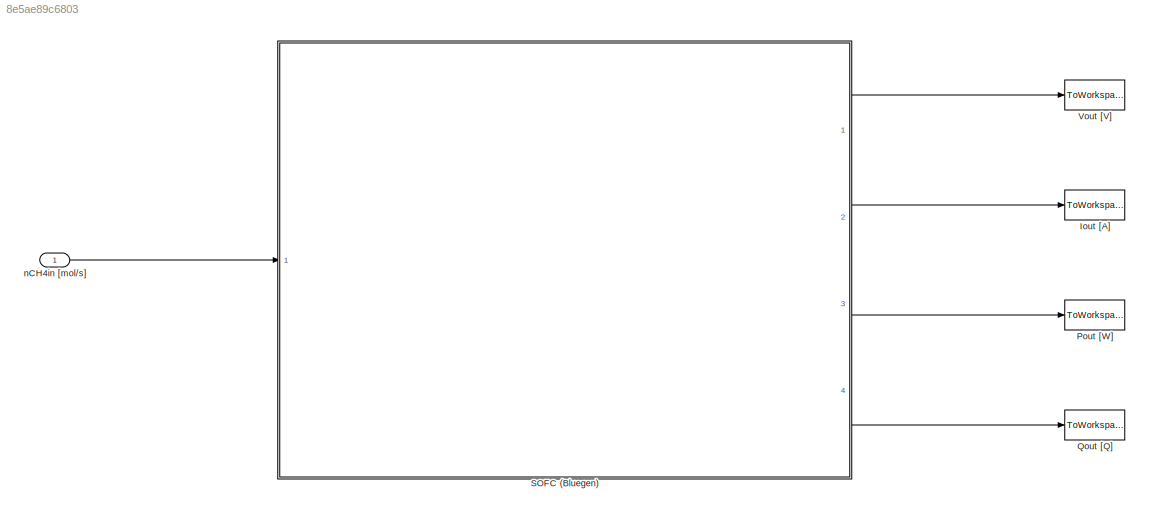
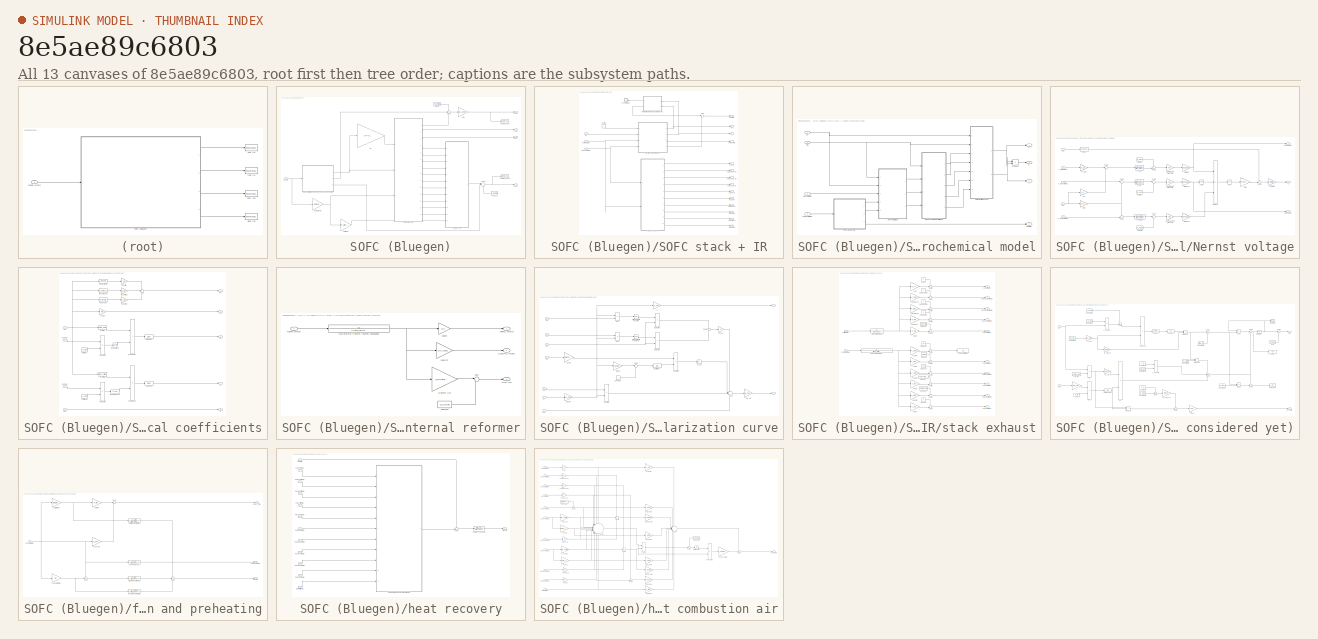
[diagram: thumbnail index - all 13 canvases of the model, root first then tree order]
MODEL slx_8e5ae89c6803
KIND model
CONFIG AbsTol = auto
CONFIG FixedStep = auto
CONFIG MaxStep = 1
CONFIG MinStep = 0.00001
CONFIG RelTol = 1e-3
CONFIG SampleTimeConstraint = Unconstrained
CONFIG Solver = ode113
CONFIG SolverMode = SingleTasking
CONFIG SolverName = ode113
CONFIG StartTime = 0.0
CONFIG StopTime = 1000
BLOCK [ToWorkspace] Iout [A]
  FixptAsFi = on
  MaxDataPoints = inf
  Ports = [1]
  SampleTime = -1
  Save2DSignal = 3-D array (concatenate along third dimension)
  SaveFormat = Timeseries
  VariableName = II
BLOCK [ToWorkspace] Pout [W]
  FixptAsFi = on
  MaxDataPoints = inf
  Ports = [1]
  SampleTime = -1
  Save2DSignal = 3-D array (concatenate along third dimension)
  SaveFormat = Timeseries
  VariableName = PP
BLOCK [ToWorkspace] Qout [Q]
  FixptAsFi = on
  MaxDataPoints = inf
  Ports = [1]
  SampleTime = -1
  Save2DSignal = 3-D array (concatenate along third dimension)
  SaveFormat = Timeseries
  VariableName = QQ
BLOCK [SubSystem] SOFC (Bluegen)
  Ports = [1, 4]
  RequestExecContextInheritance = off
  Variant = off
BLOCK [Gain] SOFC (Bluegen)/Gain
  Gain = eta_ACDC
  OutDataTypeStr = Inherit: Inherit via internal rule
  ParamDataTypeStr = Inherit: Inherit via internal rule
  SaturateOnIntegerOverflow = off
BLOCK [Gain] SOFC (Bluegen)/I [A]
  Gain = 2*F*U*(4* y_CH4 + y_CO + y_H2)/N_cell
  OutDataTypeStr = Inherit: Inherit via internal rule
  ParamDataTypeStr = Inherit: Inherit via internal rule
  SaturateOnIntegerOverflow = off
BLOCK [Outport] SOFC (Bluegen)/Iout
  IconDisplay = Port number
  Port = 2
BLOCK [Constant] SOFC (Bluegen)/Paux
  Value = P_gamma
BLOCK [Constant] SOFC (Bluegen)/Paux1
  Value = Q_gamma
BLOCK [Outport] SOFC (Bluegen)/Pout
  IconDisplay = Port number
  Port = 3
BLOCK [Outport] SOFC (Bluegen)/Qout
  IconDisplay = Port number
  Port = 4
BLOCK [SubSystem] SOFC (Bluegen)/SOFC stack + IR
  Ports = [3, 14]
  RequestExecContextInheritance = off
  Variant = off
BLOCK [Outport] SOFC (Bluegen)/SOFC stack + IR/I 
  IconDisplay = Port number
  Port = 3
BLOCK [Inport] SOFC (Bluegen)/SOFC stack + IR/I [A]
  IconDisplay = Port number
BLOCK [Outport] SOFC (Bluegen)/SOFC stack + IR/Pstack [W]
  IconDisplay = Port number
BLOCK [Outport] SOFC (Bluegen)/SOFC stack + IR/Qcell [W]
  IconDisplay = Port number
  Port = 4
BLOCK [Sum] SOFC (Bluegen)/SOFC stack + IR/Sum
  IconShape = round
  InputSameDT = off
  Inputs = |++
  OutDataTypeStr = Inherit: Inherit via internal rule
  Ports = [2, 1]
  SaturateOnIntegerOverflow = off
BLOCK [Scope] SOFC (Bluegen)/SOFC stack + IR/T evolution [K]
  Ports = [1]
  ScopeSpecificationString = C++SS(StrPVP('SaveName','ScopeData1'),StrPVP('LimitDataPoints','on'),StrPVP('DataFormat','Array'),StrPVP('Decimation','1'),StrPVP('BlockParamSampleInput','off'))
BLOCK [Constant] SOFC (Bluegen)/SOFC stack + IR/Tcell [K]
  Value = T
BLOCK [Outport] SOFC (Bluegen)/SOFC stack + IR/V [V]
  IconDisplay = Port number
  Port = 2
BLOCK [SubSystem] SOFC (Bluegen)/SOFC stack + IR/electrochemical model
  Ports = [4, 4]
  RequestExecContextInheritance = off
  Variant = off
BLOCK [Outport] SOFC (Bluegen)/SOFC stack + IR/electrochemical model/I
  IconDisplay = Port number
  Port = 2
BLOCK [Inport] SOFC (Bluegen)/SOFC stack + IR/electrochemical model/I [A]
  IconDisplay = Port number
  Port = 2
BLOCK [SubSystem] SOFC (Bluegen)/SOFC stack + IR/electrochemical model/Nernst voltage
  Ports = [5, 3]
  RequestExecContextInheritance = off
  Variant = off
BLOCK [Gain] SOFC (Bluegen)/SOFC stack + IR/electrochemical model/Nernst voltage/2*Kr*I
  Gain = 2*K_r
  OutDataTypeStr = Inherit: Inherit via internal rule
  ParamDataTypeStr = Inherit: Inherit via internal rule
  SaturateOnIntegerOverflow = off
BLOCK [Outport] SOFC (Bluegen)/SOFC stack + IR/electrochemical model/Nernst voltage/E
  IconDisplay = Port number
BLOCK [Fcn] SOFC (Bluegen)/SOFC stack + IR/electrochemical model/Nernst voltage/E0 [V]
  Expr = 1.2723 - 2.7645e-4 * u
BLOCK [Gain] SOFC (Bluegen)/SOFC stack + IR/electrochemical model/Nernst voltage/Gain
  Gain = R*T/(2*F)
  OutDataTypeStr = Inherit: Inherit via internal rule
  ParamDataTypeStr = Inherit: Inherit via internal rule
  SaturateOnIntegerOverflow = off
BLOCK [Inport] SOFC (Bluegen)/SOFC stack + IR/electrochemical model/Nernst voltage/I [A]
  IconDisplay = Port number
  Port = 2
BLOCK [Gain] SOFC (Bluegen)/SOFC stack + IR/electrochemical model/Nernst voltage/Kr*I
  Gain = K_r
  OutDataTypeStr = Inherit: Inherit via internal rule
  ParamDataTypeStr = Inherit: Inherit via internal rule
  SaturateOnIntegerOverflow = off
BLOCK [Product] SOFC (Bluegen)/SOFC stack + IR/electrochemical model/Nernst voltage/Product
  InputSameDT = off
  Inputs = **/
  OutDataTypeStr = Inherit: Inherit via internal rule
  Ports = [3, 1]
  RndMeth = Floor
  SaturateOnIntegerOverflow = off
BLOCK [Sqrt] SOFC (Bluegen)/SOFC stack + IR/electrochemical model/Nernst voltage/Sqrt
BLOCK [Sum] SOFC (Bluegen)/SOFC stack + IR/electrochemical model/Nernst voltage/Sum1
  IconShape = round
  InputSameDT = off
  Inputs = ++|
  OutDataTypeStr = Inherit: Inherit via internal rule
  Ports = [2, 1]
  SaturateOnIntegerOverflow = off
BLOCK [Sum] SOFC (Bluegen)/SOFC stack + IR/electrochemical model/Nernst voltage/Sum2
  IconShape = round
  InputSameDT = off
  Inputs = |+-
  OutDataTypeStr = Inherit: Inherit via internal rule
  Ports = [2, 1]
  SaturateOnIntegerOverflow = off
BLOCK [Sum] SOFC (Bluegen)/SOFC stack + IR/electrochemical model/Nernst voltage/Sum3
  IconShape = round
  InputSameDT = off
  Inputs = ++|
  OutDataTypeStr = Inherit: Inherit via internal rule
  Ports = [2, 1]
  SaturateOnIntegerOverflow = off
BLOCK [Sum] SOFC (Bluegen)/SOFC stack + IR/electrochemical model/Nernst voltage/Sum4
  IconShape = round
  InputSameDT = off
  Inputs = |++
  OutDataTypeStr = Inherit: Inherit via internal rule
  Ports = [2, 1]
  SaturateOnIntegerOverflow = off
BLOCK [Sum] SOFC (Bluegen)/SOFC stack + IR/electrochemical model/Nernst voltage/Sum5
  IconShape = round
  InputSameDT = off
  Inputs = |+-
  OutDataTypeStr = Inherit: Inherit via internal rule
  Ports = [2, 1]
  SaturateOnIntegerOverflow = off
BLOCK [Sum] SOFC (Bluegen)/SOFC stack + IR/electrochemical model/Nernst voltage/Sum6
  IconShape = round
  InputSameDT = off
  Inputs = ++|
  OutDataTypeStr = Inherit: Inherit via internal rule
  Ports = [2, 1]
  SaturateOnIntegerOverflow = off
BLOCK [Sum] SOFC (Bluegen)/SOFC stack + IR/electrochemical model/Nernst voltage/Sum7
  IconShape = round
  InputSameDT = off
  Inputs = |++
  OutDataTypeStr = Inherit: Inherit via internal rule
  Ports = [2, 1]
  SaturateOnIntegerOverflow = off
BLOCK [Inport] SOFC (Bluegen)/SOFC stack + IR/electrochemical model/Nernst voltage/T [K]
  IconDisplay = Port number
BLOCK [Gain] SOFC (Bluegen)/SOFC stack + IR/electrochemical model/Nernst voltage/atm --> Pa
  Gain = 101325
  OutDataTypeStr = Inherit: Inherit via internal rule
  ParamDataTypeStr = Inherit: Inherit via internal rule
  SaturateOnIntegerOverflow = off
BLOCK [Gain] SOFC (Bluegen)/SOFC stack + IR/electrochemical model/Nernst voltage/atm --> Pa1
  Gain = 101325
  OutDataTypeStr = Inherit: Inherit via internal rule
  ParamDataTypeStr = Inherit: Inherit via internal rule
  SaturateOnIntegerOverflow = off
BLOCK [Gain] SOFC (Bluegen)/SOFC stack + IR/electrochemical model/Nernst voltage/atm --> Pa2
  Gain = 101325
  OutDataTypeStr = Inherit: Inherit via internal rule
  ParamDataTypeStr = Inherit: Inherit via internal rule
  SaturateOnIntegerOverflow = off
BLOCK [Gain] SOFC (Bluegen)/SOFC stack + IR/electrochemical model/Nernst voltage/average H2 pressure
  Gain = 0.5
  OutDataTypeStr = Inherit: Inherit via internal rule
  ParamDataTypeStr = Inherit: Inherit via internal rule
  SaturateOnIntegerOverflow = off
BLOCK [Gain] SOFC (Bluegen)/SOFC stack + IR/electrochemical model/Nernst voltage/average H2O pressure
  Gain = 0.5
  OutDataTypeStr = Inherit: Inherit via internal rule
  ParamDataTypeStr = Inherit: Inherit via internal rule
  SaturateOnIntegerOverflow = off
BLOCK [Gain] SOFC (Bluegen)/SOFC stack + IR/electrochemical model/Nernst voltage/average air pressure
  Gain = 0.5
  OutDataTypeStr = Inherit: Inherit via internal rule
  ParamDataTypeStr = Inherit: Inherit via internal rule
  SaturateOnIntegerOverflow = off
BLOCK [Math] SOFC (Bluegen)/SOFC stack + IR/electrochemical model/Nernst voltage/log
  Operator = log
  Ports = [1, 1]
BLOCK [Inport] SOFC (Bluegen)/SOFC stack + IR/electrochemical model/Nernst voltage/n_H2FC [mol//s]
  IconDisplay = Port number
  Port = 4
BLOCK [Inport] SOFC (Bluegen)/SOFC stack + IR/electrochemical model/Nernst voltage/n_H2OFC [mol//s]
  IconDisplay = Port number
  Port = 5
BLOCK [Gain] SOFC (Bluegen)/SOFC stack + IR/electrochemical model/Nernst voltage/n_O2in
  Gain = x_O2
  OutDataTypeStr = Inherit: Inherit via internal rule
  ParamDataTypeStr = Inherit: Inherit via internal rule
  SaturateOnIntegerOverflow = off
BLOCK [Inport] SOFC (Bluegen)/SOFC stack + IR/electrochemical model/Nernst voltage/n_airFC [mol//s]
  IconDisplay = Port number
  Port = 3
BLOCK [Constant] SOFC (Bluegen)/SOFC stack + IR/electrochemical model/Nernst voltage/pH2 in
  Value = p_H20
BLOCK [Outport] SOFC (Bluegen)/SOFC stack + IR/electrochemical model/Nernst voltage/pH2FC [Pa]
  IconDisplay = Port number
  Port = 2
BLOCK [Constant] SOFC (Bluegen)/SOFC stack + IR/electrochemical model/Nernst voltage/pH2Oin
  Value = p_H2O0
BLOCK [Outport] SOFC (Bluegen)/SOFC stack + IR/electrochemical model/Nernst voltage/pO2FC [Pa]
  IconDisplay = Port number
  Port = 3
BLOCK [Constant] SOFC (Bluegen)/SOFC stack + IR/electrochemical model/Nernst voltage/pO2in
  Value = p_O20
BLOCK [TransferFcn] SOFC (Bluegen)/SOFC stack + IR/electrochemical model/Nernst voltage/p_H2
  ContinuousStateAttributes = 'p_H2'
  Denominator = [tau_H2 1]
  Numerator = [1/K_H2]
BLOCK [TransferFcn] SOFC (Bluegen)/SOFC stack + IR/electrochemical model/Nernst voltage/p_H2O
  ContinuousStateAttributes = 'p_H2'
  Denominator = [tau_H2O 1]
  Numerator = [1/K_H2O]
BLOCK [TransferFcn] SOFC (Bluegen)/SOFC stack + IR/electrochemical model/Nernst voltage/p_O2
  ContinuousStateAttributes = 'p_O2'
  Denominator = [tau_O2 1]
  Numerator = [1/K_O2]
BLOCK [Gain] SOFC (Bluegen)/SOFC stack + IR/electrochemical model/Nernst voltage/theta*Eid
  Gain = theta
  OutDataTypeStr = Inherit: Inherit via internal rule
  ParamDataTypeStr = Inherit: Inherit via internal rule
  SaturateOnIntegerOverflow = off
BLOCK [Outport] SOFC (Bluegen)/SOFC stack + IR/electrochemical model/P
  IconDisplay = Port number
  Port = 3
BLOCK [Product] SOFC (Bluegen)/SOFC stack + IR/electrochemical model/Product
  InputSameDT = off
  OutDataTypeStr = Inherit: Inherit via internal rule
  Ports = [2, 1]
  RndMeth = Floor
  SaturateOnIntegerOverflow = off
BLOCK [Outport] SOFC (Bluegen)/SOFC stack + IR/electrochemical model/Qref [W]
  IconDisplay = Port number
  Port = 4
BLOCK [Inport] SOFC (Bluegen)/SOFC stack + IR/electrochemical model/T [K]
  IconDisplay = Port number
BLOCK [Outport] SOFC (Bluegen)/SOFC stack + IR/electrochemical model/V
  IconDisplay = Port number
BLOCK [SubSystem] SOFC (Bluegen)/SOFC stack + IR/electrochemical model/electrochemical coefficients
  Ports = [4, 5]
  RequestExecContextInheritance = off
  Variant = off
BLOCK [Fcn] SOFC (Bluegen)/SOFC stack + IR/electrochemical model/electrochemical coefficients/(pH2//patm)^0.25
  Expr = u^0.25
BLOCK [Math] SOFC (Bluegen)/SOFC stack + IR/electrochemical model/electrochemical coefficients/(pH2//patm)^2
  Operator = magnitude^2
  Ports = [1, 1]
BLOCK [Outport] SOFC (Bluegen)/SOFC stack + IR/electrochemical model/electrochemical coefficients/E
  IconDisplay = Port number
  Port = 5
BLOCK [Inport] SOFC (Bluegen)/SOFC stack + IR/electrochemical model/electrochemical coefficients/E [V]
  IconDisplay = Port number
  Port = 2
BLOCK [Outport] SOFC (Bluegen)/SOFC stack + IR/electrochemical model/electrochemical coefficients/K1
  IconDisplay = Port number
  Port = 2
BLOCK [Gain] SOFC (Bluegen)/SOFC stack + IR/electrochemical model/electrochemical coefficients/K1 [J//C]
  Gain = R/F
  OutDataTypeStr = Inherit: Inherit via internal rule
  ParamDataTypeStr = Inherit: Inherit via internal rule
  SaturateOnIntegerOverflow = off
BLOCK [Outport] SOFC (Bluegen)/SOFC stack + IR/electrochemical model/electrochemical coefficients/K2
  IconDisplay = Port number
  Port = 3
BLOCK [Fcn] SOFC (Bluegen)/SOFC stack + IR/electrochemical model/electrochemical coefficients/K2 [cm2//A]
  Expr = 1/(2*u)
BLOCK [Outport] SOFC (Bluegen)/SOFC stack + IR/electrochemical model/electrochemical coefficients/K3
  IconDisplay = Port number
  Port = 4
BLOCK [Fcn] SOFC (Bluegen)/SOFC stack + IR/electrochemical model/electrochemical coefficients/K3 [cm2//a]
  Expr = 1/(2*u)
BLOCK [Sum] SOFC (Bluegen)/SOFC stack + IR/electrochemical model/electrochemical coefficients/Sum
  IconShape = round
  InputSameDT = off
  Inputs = +++
  OutDataTypeStr = Inherit: Inherit via internal rule
  Ports = [3, 1]
  SaturateOnIntegerOverflow = off
BLOCK [Inport] SOFC (Bluegen)/SOFC stack + IR/electrochemical model/electrochemical coefficients/T [K]
  IconDisplay = Port number
BLOCK [Fcn] SOFC (Bluegen)/SOFC stack + IR/electrochemical model/electrochemical coefficients/exp(f(T))
  Expr = gamma_an * (exp (- E_act_an/(R*u)))
BLOCK [Fcn] SOFC (Bluegen)/SOFC stack + IR/electrochemical model/electrochemical coefficients/exp(f(T))1
  Expr = gamma_cat*(exp (-E_act_cat/(R*u)))
BLOCK [Product] SOFC (Bluegen)/SOFC stack + IR/electrochemical model/electrochemical coefficients/i0 an [A//cm2]
  InputSameDT = off
  OutDataTypeStr = Inherit: Inherit via internal rule
  Ports = [2, 1]
  RndMeth = Floor
  SaturateOnIntegerOverflow = off
BLOCK [Product] SOFC (Bluegen)/SOFC stack + IR/electrochemical model/electrochemical coefficients/i0 cat [A//cm2]
  InputSameDT = off
  OutDataTypeStr = Inherit: Inherit via internal rule
  Ports = [2, 1]
  RndMeth = Floor
  SaturateOnIntegerOverflow = off
BLOCK [Constant] SOFC (Bluegen)/SOFC stack + IR/electrochemical model/electrochemical coefficients/p atm [Pa]
  Value = p_atm
BLOCK [Constant] SOFC (Bluegen)/SOFC stack + IR/electrochemical model/electrochemical coefficients/p atm [Pa]1
  Value = p_atm
BLOCK [Inport] SOFC (Bluegen)/SOFC stack + IR/electrochemical model/electrochemical coefficients/pH2 [Pa] 
  IconDisplay = Port number
  Port = 3
BLOCK [Product] SOFC (Bluegen)/SOFC stack + IR/electrochemical model/electrochemical coefficients/pH2//patm
  InputSameDT = off
  Inputs = */
  OutDataTypeStr = Inherit: Inherit via internal rule
  Ports = [2, 1]
  RndMeth = Floor
  SaturateOnIntegerOverflow = off
BLOCK [Inport] SOFC (Bluegen)/SOFC stack + IR/electrochemical model/electrochemical coefficients/pO2 [Pa]
  IconDisplay = Port number
  Port = 4
BLOCK [Product] SOFC (Bluegen)/SOFC stack + IR/electrochemical model/electrochemical coefficients/pO2//patm
  InputSameDT = off
  Inputs = */
  OutDataTypeStr = Inherit: Inherit via internal rule
  Ports = [2, 1]
  RndMeth = Floor
  SaturateOnIntegerOverflow = off
BLOCK [Outport] SOFC (Bluegen)/SOFC stack + IR/electrochemical model/electrochemical coefficients/rho
  IconDisplay = Port number
BLOCK [Fcn] SOFC (Bluegen)/SOFC stack + IR/electrochemical model/electrochemical coefficients/rho anode
  Expr = A_an * exp (B_an / u)
BLOCK [Fcn] SOFC (Bluegen)/SOFC stack + IR/electrochemical model/electrochemical coefficients/rho cathode
  Expr = A_cat * exp (B_cat / u)
BLOCK [Fcn] SOFC (Bluegen)/SOFC stack + IR/electrochemical model/electrochemical coefficients/rho electrolyte
  Expr = A_el * exp (B_el / u)
BLOCK [Gain] SOFC (Bluegen)/SOFC stack + IR/electrochemical model/electrochemical coefficients/rhoan * tan
  Gain = t_an
  OutDataTypeStr = Inherit: Inherit via internal rule
  ParamDataTypeStr = Inherit: Inherit via internal rule
  SaturateOnIntegerOverflow = off
BLOCK [Gain] SOFC (Bluegen)/SOFC stack + IR/electrochemical model/electrochemical coefficients/rhocat * tcat
  Gain = t_cat
  OutDataTypeStr = Inherit: Inherit via internal rule
  ParamDataTypeStr = Inherit: Inherit via internal rule
  SaturateOnIntegerOverflow = off
BLOCK [Gain] SOFC (Bluegen)/SOFC stack + IR/electrochemical model/electrochemical coefficients/rhoel * tel
  Gain = t_el
  OutDataTypeStr = Inherit: Inherit via internal rule
  ParamDataTypeStr = Inherit: Inherit via internal rule
  SaturateOnIntegerOverflow = off
BLOCK [SubSystem] SOFC (Bluegen)/SOFC stack + IR/electrochemical model/internal reformer
  Ports = [1, 3]
  RequestExecContextInheritance = off
  Variant = off
BLOCK [Constant] SOFC (Bluegen)/SOFC stack + IR/electrochemical model/internal reformer/Constant
  Value = Q_COref
BLOCK [Gain] SOFC (Bluegen)/SOFC stack + IR/electrochemical model/internal reformer/QCH4ref [W]
  Gain = h_CH4ref*y_CH4
  OutDataTypeStr = Inherit: Inherit via internal rule
  ParamDataTypeStr = Inherit: Inherit via internal rule
  SaturateOnIntegerOverflow = off
BLOCK [Outport] SOFC (Bluegen)/SOFC stack + IR/electrochemical model/internal reformer/Qref [W]
  IconDisplay = Port number
  Port = 3
BLOCK [Sum] SOFC (Bluegen)/SOFC stack + IR/electrochemical model/internal reformer/Sum
  IconShape = round
  InputSameDT = off
  Inputs = |++
  OutDataTypeStr = Inherit: Inherit via internal rule
  Ports = [2, 1]
  SaturateOnIntegerOverflow = off
BLOCK [TransferFcn] SOFC (Bluegen)/SOFC stack + IR/electrochemical model/internal reformer/fuel reformer transfer function (all inclusive)
  ContinuousStateAttributes = 'q_H2'
  Denominator = [(tau1_ref*tau2_ref) (tau1_ref+tau2_ref) 1]
BLOCK [Inport] SOFC (Bluegen)/SOFC stack + IR/electrochemical model/internal reformer/nCH4FC [mol//s]
  IconDisplay = Port number
BLOCK [Gain] SOFC (Bluegen)/SOFC stack + IR/electrochemical model/internal reformer/nH2FC
  Gain = CV
  OutDataTypeStr = Inherit: Inherit via internal rule
  ParamDataTypeStr = Inherit: Inherit via internal rule
  SaturateOnIntegerOverflow = off
BLOCK [Outport] SOFC (Bluegen)/SOFC stack + IR/electrochemical model/internal reformer/nH2FC_ [mol//s]
  IconDisplay = Port number
BLOCK [Gain] SOFC (Bluegen)/SOFC stack + IR/electrochemical model/internal reformer/nH2OFC
  Gain = CV_H2O
  OutDataTypeStr = Inherit: Inherit via internal rule
  ParamDataTypeStr = Inherit: Inherit via internal rule
  SaturateOnIntegerOverflow = off
BLOCK [Outport] SOFC (Bluegen)/SOFC stack + IR/electrochemical model/internal reformer/n_H2OFC_ [mol//s]
  IconDisplay = Port number
  Port = 2
BLOCK [Inport] SOFC (Bluegen)/SOFC stack + IR/electrochemical model/nCH4FC [mol//s]
  IconDisplay = Port number
  Port = 4
BLOCK [Inport] SOFC (Bluegen)/SOFC stack + IR/electrochemical model/nairFC [mol//s]
  IconDisplay = Port number
  Port = 3
BLOCK [SubSystem] SOFC (Bluegen)/SOFC stack + IR/electrochemical model/polarization curve
  Ports = [7, 2]
  RequestExecContextInheritance = off
  Variant = off
BLOCK [Gain] SOFC (Bluegen)/SOFC stack + IR/electrochemical model/polarization curve/CF act
  OutDataTypeStr = Inherit: Inherit via internal rule
  ParamDataTypeStr = Inherit: Inherit via internal rule
  SaturateOnIntegerOverflow = off
BLOCK [Constant] SOFC (Bluegen)/SOFC stack + IR/electrochemical model/polarization curve/Constant
BLOCK [Inport] SOFC (Bluegen)/SOFC stack + IR/electrochemical model/polarization curve/E [V]
  IconDisplay = Port number
  Port = 7
BLOCK [Outport] SOFC (Bluegen)/SOFC stack + IR/electrochemical model/polarization curve/I
  IconDisplay = Port number
  Port = 2
BLOCK [Inport] SOFC (Bluegen)/SOFC stack + IR/electrochemical model/polarization curve/I [A] 
  IconDisplay = Port number
BLOCK [Inport] SOFC (Bluegen)/SOFC stack + IR/electrochemical model/polarization curve/K1
  IconDisplay = Port number
  Port = 4
BLOCK [Inport] SOFC (Bluegen)/SOFC stack + IR/electrochemical model/polarization curve/K2
  IconDisplay = Port number
  Port = 5
BLOCK [Product] SOFC (Bluegen)/SOFC stack + IR/electrochemical model/polarization curve/K2*i
  InputSameDT = off
  OutDataTypeStr = Inherit: Inherit via internal rule
  Ports = [2, 1]
  RndMeth = Floor
  SaturateOnIntegerOverflow = off
BLOCK [Inport] SOFC (Bluegen)/SOFC stack + IR/electrochemical model/polarization curve/K3
  IconDisplay = Port number
  Port = 6
BLOCK [Product] SOFC (Bluegen)/SOFC stack + IR/electrochemical model/polarization curve/K3*i
  InputSameDT = off
  OutDataTypeStr = Inherit: Inherit via internal rule
  Ports = [2, 1]
  RndMeth = Floor
  SaturateOnIntegerOverflow = off
BLOCK [Gain] SOFC (Bluegen)/SOFC stack + IR/electrochemical model/polarization curve/RT//2F
  Gain = R/(2*F)
  OutDataTypeStr = Inherit: Inherit via internal rule
  ParamDataTypeStr = Inherit: Inherit via internal rule
  SaturateOnIntegerOverflow = off
BLOCK [Sum] SOFC (Bluegen)/SOFC stack + IR/electrochemical model/polarization curve/Sum
  IconShape = round
  InputSameDT = off
  Inputs = ---|+
  OutDataTypeStr = Inherit: Inherit via internal rule
  Ports = [4, 1]
  SaturateOnIntegerOverflow = off
BLOCK [Sum] SOFC (Bluegen)/SOFC stack + IR/electrochemical model/polarization curve/Sum1
  IconShape = round
  InputSameDT = off
  Inputs = |-+
  OutDataTypeStr = Inherit: Inherit via internal rule
  Ports = [2, 1]
  SaturateOnIntegerOverflow = off
BLOCK [Sum] SOFC (Bluegen)/SOFC stack + IR/electrochemical model/polarization curve/Sum4
  IconShape = round
  InputSameDT = off
  Inputs = +|+
  OutDataTypeStr = Inherit: Inherit via internal rule
  Ports = [2, 1]
  SaturateOnIntegerOverflow = off
BLOCK [Inport] SOFC (Bluegen)/SOFC stack + IR/electrochemical model/polarization curve/T [K]
  IconDisplay = Port number
  Port = 2
BLOCK [Trigonometry] SOFC (Bluegen)/SOFC stack + IR/electrochemical model/polarization curve/Trigonometric Function
  Operator = asinh
  Ports = [1, 1]
BLOCK [Trigonometry] SOFC (Bluegen)/SOFC stack + IR/electrochemical model/polarization curve/Trigonometric Function1
  Operator = asinh
  Ports = [1, 1]
BLOCK [Outport] SOFC (Bluegen)/SOFC stack + IR/electrochemical model/polarization curve/V
  IconDisplay = Port number
BLOCK [Abs] SOFC (Bluegen)/SOFC stack + IR/electrochemical model/polarization curve/V_con
  SaturateOnIntegerOverflow = off
BLOCK [Product] SOFC (Bluegen)/SOFC stack + IR/electrochemical model/polarization curve/Vohm [V]
  InputSameDT = off
  OutDataTypeStr = Inherit: Inherit via internal rule
  Ports = [2, 1]
  RndMeth = Floor
  SaturateOnIntegerOverflow = off
BLOCK [Product] SOFC (Bluegen)/SOFC stack + IR/electrochemical model/polarization curve/Vohm [V]1
  InputSameDT = off
  OutDataTypeStr = Inherit: Inherit via internal rule
  Ports = [2, 1]
  RndMeth = Floor
  SaturateOnIntegerOverflow = off
BLOCK [Gain] SOFC (Bluegen)/SOFC stack + IR/electrochemical model/polarization curve/i [A//cm2]
  Gain = 1/A_cell
  OutDataTypeStr = Inherit: Inherit via internal rule
  ParamDataTypeStr = Inherit: Inherit via internal rule
  SaturateOnIntegerOverflow = off
BLOCK [Gain] SOFC (Bluegen)/SOFC stack + IR/electrochemical model/polarization curve/i//i_max
  Gain = 1/i_max
  OutDataTypeStr = Inherit: Inherit via internal rule
  ParamDataTypeStr = Inherit: Inherit via internal rule
  SaturateOnIntegerOverflow = off
BLOCK [Gain] SOFC (Bluegen)/SOFC stack + IR/electrochemical model/polarization curve/i1
  Gain = A_cell
  OutDataTypeStr = Inherit: Inherit via internal rule
  ParamDataTypeStr = Inherit: Inherit via internal rule
  SaturateOnIntegerOverflow = off
BLOCK [Math] SOFC (Bluegen)/SOFC stack + IR/electrochemical model/polarization curve/log(1 - i//imax)
  Operator = log
  Ports = [1, 1]
BLOCK [Product] SOFC (Bluegen)/SOFC stack + IR/electrochemical model/polarization curve/log(K2)*K1
  InputSameDT = off
  OutDataTypeStr = Inherit: Inherit via internal rule
  Ports = [2, 1]
  RndMeth = Floor
  SaturateOnIntegerOverflow = off
BLOCK [Product] SOFC (Bluegen)/SOFC stack + IR/electrochemical model/polarization curve/log(K3)*K1
  InputSameDT = off
  OutDataTypeStr = Inherit: Inherit via internal rule
  Ports = [2, 1]
  RndMeth = Floor
  SaturateOnIntegerOverflow = off
BLOCK [Inport] SOFC (Bluegen)/SOFC stack + IR/electrochemical model/polarization curve/rho
  IconDisplay = Port number
  Port = 3
BLOCK [Gain] SOFC (Bluegen)/SOFC stack + IR/electrochemical model/polarization curve/v*N_cell
  Gain = N_cell
  OutDataTypeStr = Inherit: Inherit via internal rule
  ParamDataTypeStr = Inherit: Inherit via internal rule
  SaturateOnIntegerOverflow = off
BLOCK [Outport] SOFC (Bluegen)/SOFC stack + IR/nArexh
  IconDisplay = Port number
  Port = 5
BLOCK [Inport] SOFC (Bluegen)/SOFC stack + IR/nCH4FC [mol//s]
  IconDisplay = Port number
  Port = 2
BLOCK [Outport] SOFC (Bluegen)/SOFC stack + IR/nCO2exh
  IconDisplay = Port number
  Port = 11
BLOCK [Outport] SOFC (Bluegen)/SOFC stack + IR/nCO2exh cat
  IconDisplay = Port number
  Port = 6
BLOCK [Outport] SOFC (Bluegen)/SOFC stack + IR/nCOexh
  IconDisplay = Port number
  Port = 10
BLOCK [Outport] SOFC (Bluegen)/SOFC stack + IR/nH2Oexh
  IconDisplay = Port number
  Port = 13
BLOCK [Outport] SOFC (Bluegen)/SOFC stack + IR/nH2Oexh cat
  IconDisplay = Port number
  Port = 7
BLOCK [Outport] SOFC (Bluegen)/SOFC stack + IR/nH2exh
  IconDisplay = Port number
  Port = 12
BLOCK [Outport] SOFC (Bluegen)/SOFC stack + IR/nN2exh
  IconDisplay = Port number
  Port = 14
BLOCK [Outport] SOFC (Bluegen)/SOFC stack + IR/nN2exh cat
  IconDisplay = Port number
  Port = 8
BLOCK [Outport] SOFC (Bluegen)/SOFC stack + IR/nO2exh
  IconDisplay = Port number
  Port = 9
BLOCK [Inport] SOFC (Bluegen)/SOFC stack + IR/nairFC [mol//s]
  IconDisplay = Port number
  Port = 3
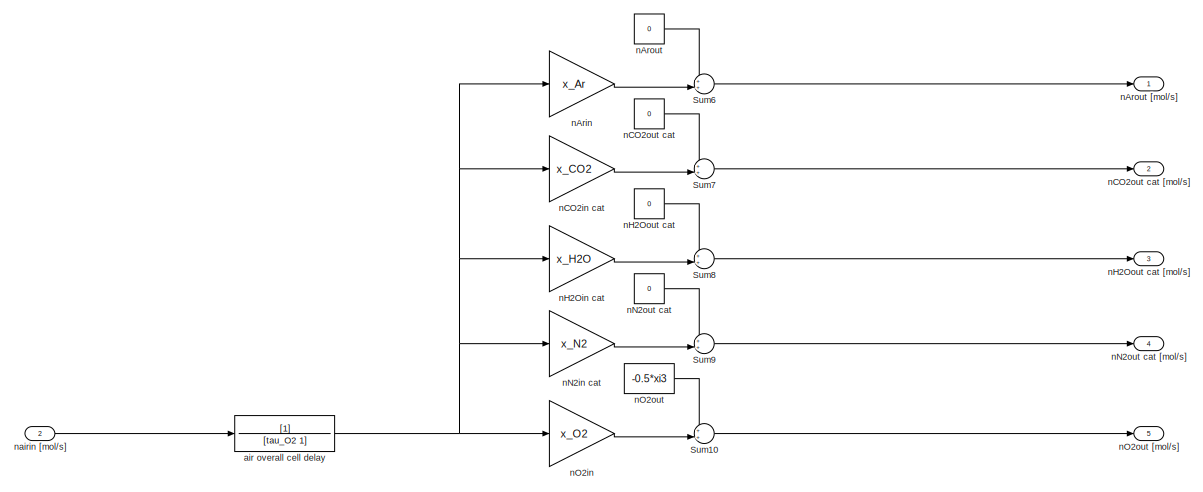
[diagram: SOFC (Bluegen)/SOFC stack + IR/stack exhaust - part 1/2, full width, top band]
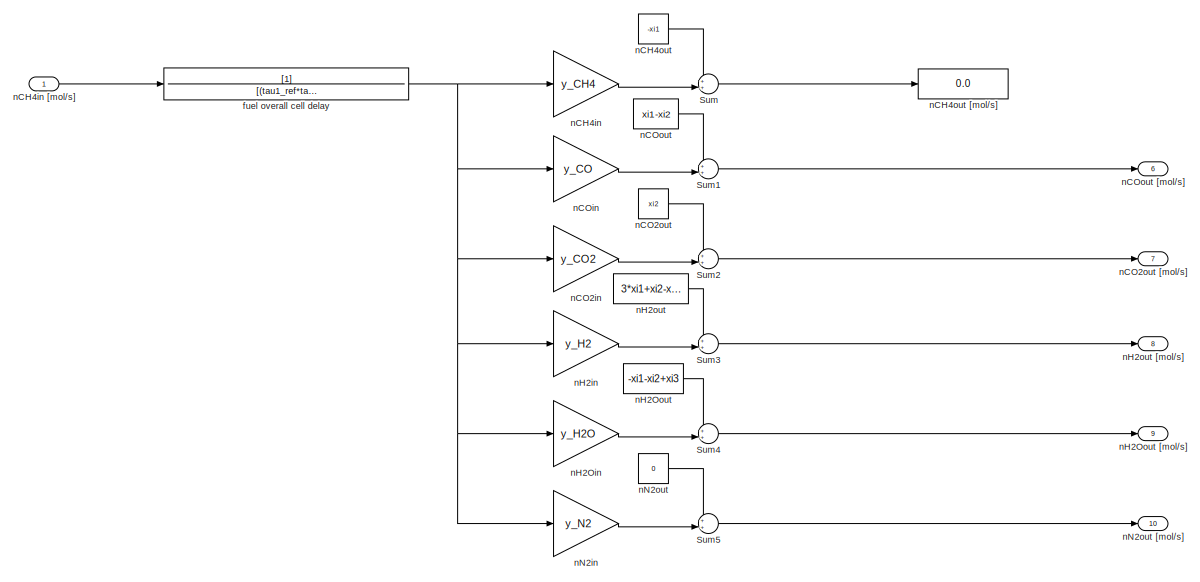
[diagram: SOFC (Bluegen)/SOFC stack + IR/stack exhaust - part 2/2, full width, bottom band]
BLOCK [SubSystem] SOFC (Bluegen)/SOFC stack + IR/stack exhaust
  Ports = [2, 10]
  RequestExecContextInheritance = off
  Variant = off
BLOCK [Sum] SOFC (Bluegen)/SOFC stack + IR/stack exhaust/Sum
  IconShape = round
  InputSameDT = off
  Inputs = ++|
  OutDataTypeStr = Inherit: Inherit via internal rule
  Ports = [2, 1]
  SaturateOnIntegerOverflow = off
BLOCK [Sum] SOFC (Bluegen)/SOFC stack + IR/stack exhaust/Sum1
  IconShape = round
  InputSameDT = off
  Inputs = ++|
  OutDataTypeStr = Inherit: Inherit via internal rule
  Ports = [2, 1]
  SaturateOnIntegerOverflow = off
BLOCK [Sum] SOFC (Bluegen)/SOFC stack + IR/stack exhaust/Sum10
  IconShape = round
  InputSameDT = off
  Inputs = ++|
  OutDataTypeStr = Inherit: Inherit via internal rule
  Ports = [2, 1]
  SaturateOnIntegerOverflow = off
BLOCK [Sum] SOFC (Bluegen)/SOFC stack + IR/stack exhaust/Sum2
  IconShape = round
  InputSameDT = off
  Inputs = ++|
  OutDataTypeStr = Inherit: Inherit via internal rule
  Ports = [2, 1]
  SaturateOnIntegerOverflow = off
BLOCK [Sum] SOFC (Bluegen)/SOFC stack + IR/stack exhaust/Sum3
  IconShape = round
  InputSameDT = off
  Inputs = ++|
  OutDataTypeStr = Inherit: Inherit via internal rule
  Ports = [2, 1]
  SaturateOnIntegerOverflow = off
BLOCK [Sum] SOFC (Bluegen)/SOFC stack + IR/stack exhaust/Sum4
  IconShape = round
  InputSameDT = off
  Inputs = ++|
  OutDataTypeStr = Inherit: Inherit via internal rule
  Ports = [2, 1]
  SaturateOnIntegerOverflow = off
BLOCK [Sum] SOFC (Bluegen)/SOFC stack + IR/stack exhaust/Sum5
  IconShape = round
  InputSameDT = off
  Inputs = ++|
  OutDataTypeStr = Inherit: Inherit via internal rule
  Ports = [2, 1]
  SaturateOnIntegerOverflow = off
BLOCK [Sum] SOFC (Bluegen)/SOFC stack + IR/stack exhaust/Sum6
  IconShape = round
  InputSameDT = off
  Inputs = ++|
  OutDataTypeStr = Inherit: Inherit via internal rule
  Ports = [2, 1]
  SaturateOnIntegerOverflow = off
BLOCK [Sum] SOFC (Bluegen)/SOFC stack + IR/stack exhaust/Sum7
  IconShape = round
  InputSameDT = off
  Inputs = ++|
  OutDataTypeStr = Inherit: Inherit via internal rule
  Ports = [2, 1]
  SaturateOnIntegerOverflow = off
BLOCK [Sum] SOFC (Bluegen)/SOFC stack + IR/stack exhaust/Sum8
  IconShape = round
  InputSameDT = off
  Inputs = ++|
  OutDataTypeStr = Inherit: Inherit via internal rule
  Ports = [2, 1]
  SaturateOnIntegerOverflow = off
BLOCK [Sum] SOFC (Bluegen)/SOFC stack + IR/stack exhaust/Sum9
  IconShape = round
  InputSameDT = off
  Inputs = ++|
  OutDataTypeStr = Inherit: Inherit via internal rule
  Ports = [2, 1]
  SaturateOnIntegerOverflow = off
BLOCK [TransferFcn] SOFC (Bluegen)/SOFC stack + IR/stack exhaust/air overall cell delay
  ContinuousStateAttributes = 'p_O2'
  Denominator = [tau_O2 1]
BLOCK [TransferFcn] SOFC (Bluegen)/SOFC stack + IR/stack exhaust/fuel overall cell delay
  ContinuousStateAttributes = 'q_H2'
  Denominator = [(tau1_ref*tau2_ref) (tau1_ref+tau2_ref) 1]
BLOCK [Gain] SOFC (Bluegen)/SOFC stack + IR/stack exhaust/nArin
  Gain = x_Ar
  OutDataTypeStr = Inherit: Inherit via internal rule
  ParamDataTypeStr = Inherit: Inherit via internal rule
  SaturateOnIntegerOverflow = off
BLOCK [Constant] SOFC (Bluegen)/SOFC stack + IR/stack exhaust/nArout
  Value = 0
BLOCK [Outport] SOFC (Bluegen)/SOFC stack + IR/stack exhaust/nArout [mol//s]
  IconDisplay = Port number
BLOCK [Gain] SOFC (Bluegen)/SOFC stack + IR/stack exhaust/nCH4in
  Gain = y_CH4
  OutDataTypeStr = Inherit: Inherit via internal rule
  ParamDataTypeStr = Inherit: Inherit via internal rule
  SaturateOnIntegerOverflow = off
BLOCK [Inport] SOFC (Bluegen)/SOFC stack + IR/stack exhaust/nCH4in [mol//s]
  IconDisplay = Port number
BLOCK [Constant] SOFC (Bluegen)/SOFC stack + IR/stack exhaust/nCH4out
  Value = -xi1
BLOCK [Display] SOFC (Bluegen)/SOFC stack + IR/stack exhaust/nCH4out [mol//s]
  Decimation = 1
  Ports = [1]
BLOCK [Gain] SOFC (Bluegen)/SOFC stack + IR/stack exhaust/nCO2in
  Gain = y_CO2
  OutDataTypeStr = Inherit: Inherit via internal rule
  ParamDataTypeStr = Inherit: Inherit via internal rule
  SaturateOnIntegerOverflow = off
BLOCK [Gain] SOFC (Bluegen)/SOFC stack + IR/stack exhaust/nCO2in cat
  Gain = x_CO2
  OutDataTypeStr = Inherit: Inherit via internal rule
  ParamDataTypeStr = Inherit: Inherit via internal rule
  SaturateOnIntegerOverflow = off
BLOCK [Constant] SOFC (Bluegen)/SOFC stack + IR/stack exhaust/nCO2out
  Value = xi2
BLOCK [Outport] SOFC (Bluegen)/SOFC stack + IR/stack exhaust/nCO2out [mol//s]
  IconDisplay = Port number
  Port = 7
BLOCK [Constant] SOFC (Bluegen)/SOFC stack + IR/stack exhaust/nCO2out cat
  Value = 0
BLOCK [Outport] SOFC (Bluegen)/SOFC stack + IR/stack exhaust/nCO2out cat [mol//s]
  IconDisplay = Port number
  Port = 2
BLOCK [Gain] SOFC (Bluegen)/SOFC stack + IR/stack exhaust/nCOin
  Gain = y_CO
  OutDataTypeStr = Inherit: Inherit via internal rule
  ParamDataTypeStr = Inherit: Inherit via internal rule
  SaturateOnIntegerOverflow = off
BLOCK [Constant] SOFC (Bluegen)/SOFC stack + IR/stack exhaust/nCOout
  Value = xi1-xi2
BLOCK [Outport] SOFC (Bluegen)/SOFC stack + IR/stack exhaust/nCOout [mol//s]
  IconDisplay = Port number
  Port = 6
BLOCK [Gain] SOFC (Bluegen)/SOFC stack + IR/stack exhaust/nH2Oin
  Gain = y_H2O
  OutDataTypeStr = Inherit: Inherit via internal rule
  ParamDataTypeStr = Inherit: Inherit via internal rule
  SaturateOnIntegerOverflow = off
BLOCK [Gain] SOFC (Bluegen)/SOFC stack + IR/stack exhaust/nH2Oin cat
  Gain = x_H2O
  OutDataTypeStr = Inherit: Inherit via internal rule
  ParamDataTypeStr = Inherit: Inherit via internal rule
  SaturateOnIntegerOverflow = off
BLOCK [Constant] SOFC (Bluegen)/SOFC stack + IR/stack exhaust/nH2Oout
  Value = -xi1-xi2+xi3
BLOCK [Outport] SOFC (Bluegen)/SOFC stack + IR/stack exhaust/nH2Oout [mol//s]
  IconDisplay = Port number
  Port = 9
BLOCK [Constant] SOFC (Bluegen)/SOFC stack + IR/stack exhaust/nH2Oout cat
  Value = 0
BLOCK [Outport] SOFC (Bluegen)/SOFC stack + IR/stack exhaust/nH2Oout cat [mol//s]
  IconDisplay = Port number
  Port = 3
BLOCK [Gain] SOFC (Bluegen)/SOFC stack + IR/stack exhaust/nH2in
  Gain = y_H2
  OutDataTypeStr = Inherit: Inherit via internal rule
  ParamDataTypeStr = Inherit: Inherit via internal rule
  SaturateOnIntegerOverflow = off
BLOCK [Constant] SOFC (Bluegen)/SOFC stack + IR/stack exhaust/nH2out
  Value = 3*xi1+xi2-xi3
BLOCK [Outport] SOFC (Bluegen)/SOFC stack + IR/stack exhaust/nH2out [mol//s]
  IconDisplay = Port number
  Port = 8
BLOCK [Gain] SOFC (Bluegen)/SOFC stack + IR/stack exhaust/nN2in
  Gain = y_N2
  OutDataTypeStr = Inherit: Inherit via internal rule
  ParamDataTypeStr = Inherit: Inherit via internal rule
  SaturateOnIntegerOverflow = off
BLOCK [Gain] SOFC (Bluegen)/SOFC stack + IR/stack exhaust/nN2in cat
  Gain = x_N2
  OutDataTypeStr = Inherit: Inherit via internal rule
  ParamDataTypeStr = Inherit: Inherit via internal rule
  SaturateOnIntegerOverflow = off
BLOCK [Constant] SOFC (Bluegen)/SOFC stack + IR/stack exhaust/nN2out
  Value = 0
BLOCK [Outport] SOFC (Bluegen)/SOFC stack + IR/stack exhaust/nN2out [mol//s]
  IconDisplay = Port number
  Port = 10
BLOCK [Constant] SOFC (Bluegen)/SOFC stack + IR/stack exhaust/nN2out cat
  Value = 0
BLOCK [Outport] SOFC (Bluegen)/SOFC stack + IR/stack exhaust/nN2out cat [mol//s]
  IconDisplay = Port number
  Port = 4
BLOCK [Gain] SOFC (Bluegen)/SOFC stack + IR/stack exhaust/nO2in
  Gain = x_O2
  OutDataTypeStr = Inherit: Inherit via internal rule
  ParamDataTypeStr = Inherit: Inherit via internal rule
  SaturateOnIntegerOverflow = off
BLOCK [Constant] SOFC (Bluegen)/SOFC stack + IR/stack exhaust/nO2out
  Value = -0.5*xi3
BLOCK [Outport] SOFC (Bluegen)/SOFC stack + IR/stack exhaust/nO2out [mol//s]
  IconDisplay = Port number
  Port = 5
BLOCK [Inport] SOFC (Bluegen)/SOFC stack + IR/stack exhaust/nairin [mol//s]
  IconDisplay = Port number
  Port = 2
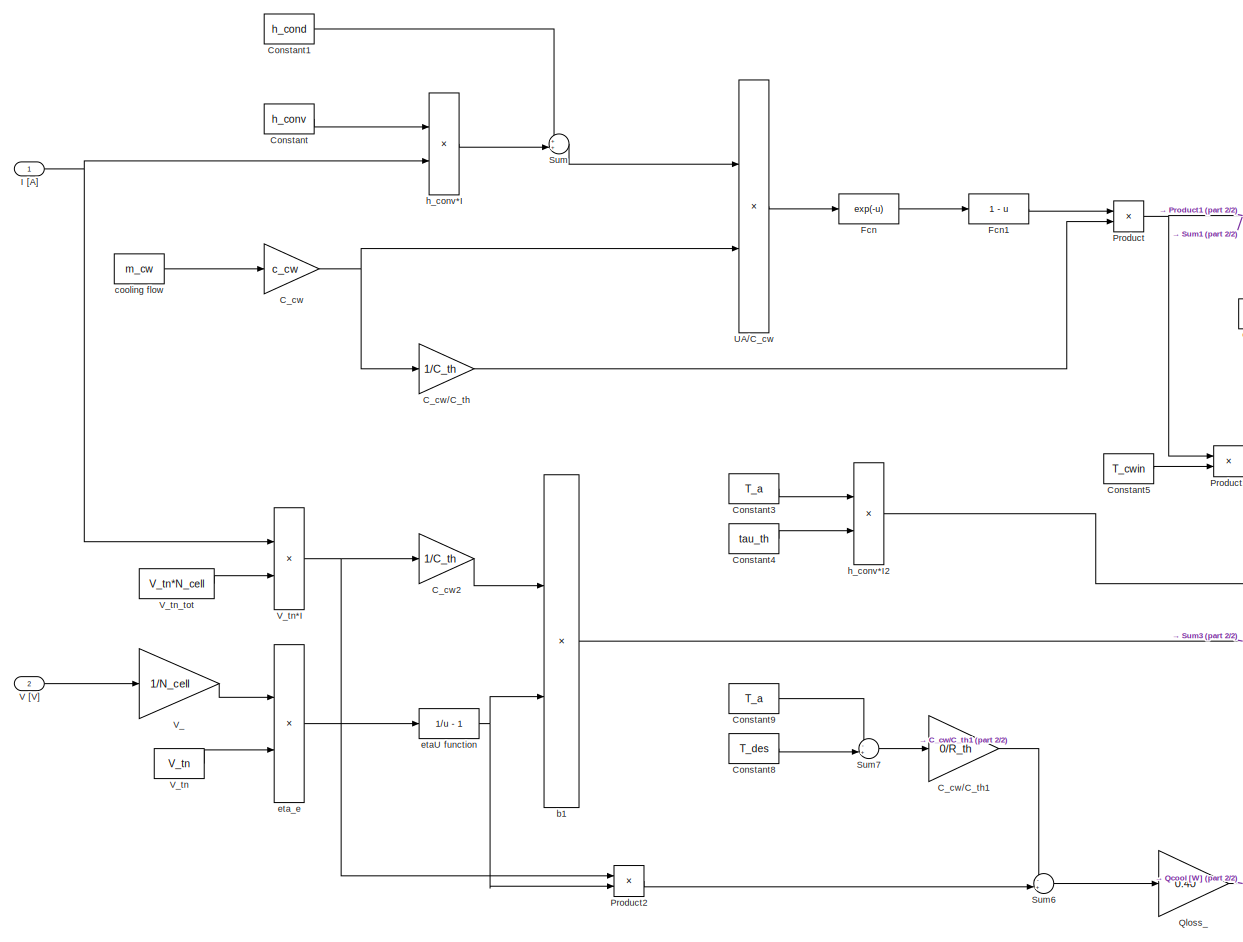
[diagram: SOFC (Bluegen)/SOFC stack + IR/thermal model (not considered yet) - part 1/2, left side, full height]
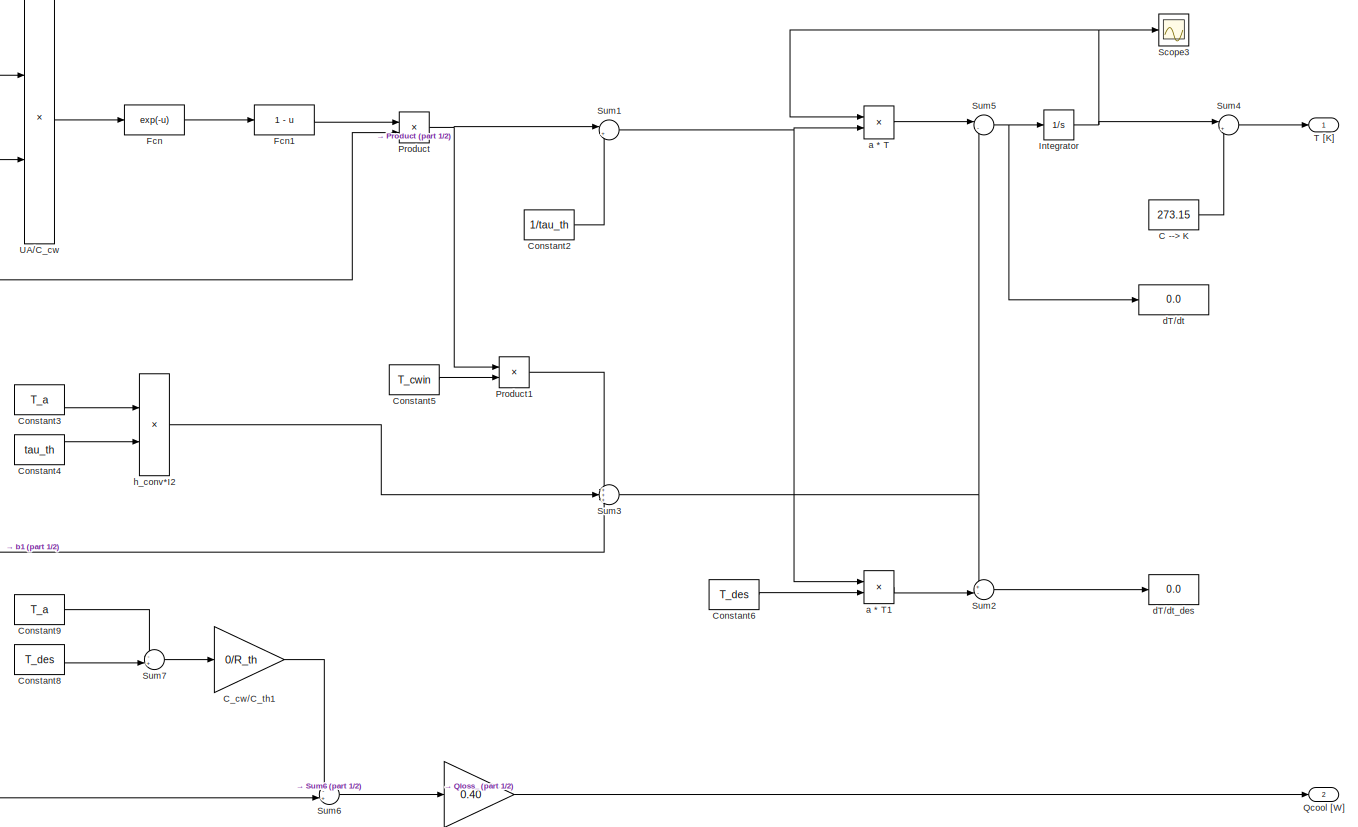
[diagram: SOFC (Bluegen)/SOFC stack + IR/thermal model (not considered yet) - part 2/2, right side, full height]
BLOCK [SubSystem] SOFC (Bluegen)/SOFC stack + IR/thermal model (not considered yet)
  Ports = [2, 2]
  RequestExecContextInheritance = off
  Variant = off
BLOCK [Constant] SOFC (Bluegen)/SOFC stack + IR/thermal model (not considered yet)/C --> K
  Value = 273.15
BLOCK [Gain] SOFC (Bluegen)/SOFC stack + IR/thermal model (not considered yet)/C_cw
  Gain = c_cw
  OutDataTypeStr = Inherit: Inherit via internal rule
  ParamDataTypeStr = Inherit: Inherit via internal rule
  SaturateOnIntegerOverflow = off
BLOCK [Gain] SOFC (Bluegen)/SOFC stack + IR/thermal model (not considered yet)/C_cw//C_th
  Gain = 1/C_th
  OutDataTypeStr = Inherit: Inherit via internal rule
  ParamDataTypeStr = Inherit: Inherit via internal rule
  SaturateOnIntegerOverflow = off
BLOCK [Gain] SOFC (Bluegen)/SOFC stack + IR/thermal model (not considered yet)/C_cw//C_th1
  Gain = 0/R_th
  OutDataTypeStr = Inherit: Inherit via internal rule
  ParamDataTypeStr = Inherit: Inherit via internal rule
  SaturateOnIntegerOverflow = off
BLOCK [Gain] SOFC (Bluegen)/SOFC stack + IR/thermal model (not considered yet)/C_cw2
  Gain = 1/C_th
  OutDataTypeStr = Inherit: Inherit via internal rule
  ParamDataTypeStr = Inherit: Inherit via internal rule
  SaturateOnIntegerOverflow = off
BLOCK [Constant] SOFC (Bluegen)/SOFC stack + IR/thermal model (not considered yet)/Constant
  Value = h_conv
BLOCK [Constant] SOFC (Bluegen)/SOFC stack + IR/thermal model (not considered yet)/Constant1
  Value = h_cond
BLOCK [Constant] SOFC (Bluegen)/SOFC stack + IR/thermal model (not considered yet)/Constant2
  Value = 1/tau_th
BLOCK [Constant] SOFC (Bluegen)/SOFC stack + IR/thermal model (not considered yet)/Constant3
  Value = T_a
BLOCK [Constant] SOFC (Bluegen)/SOFC stack + IR/thermal model (not considered yet)/Constant4
  Value = tau_th
BLOCK [Constant] SOFC (Bluegen)/SOFC stack + IR/thermal model (not considered yet)/Constant5
  Value = T_cwin
BLOCK [Constant] SOFC (Bluegen)/SOFC stack + IR/thermal model (not considered yet)/Constant6
  Value = T_des
BLOCK [Constant] SOFC (Bluegen)/SOFC stack + IR/thermal model (not considered yet)/Constant8
  Value = T_des
BLOCK [Constant] SOFC (Bluegen)/SOFC stack + IR/thermal model (not considered yet)/Constant9
  Value = T_a
BLOCK [Fcn] SOFC (Bluegen)/SOFC stack + IR/thermal model (not considered yet)/Fcn
  Expr = exp(-u)
BLOCK [Fcn] SOFC (Bluegen)/SOFC stack + IR/thermal model (not considered yet)/Fcn1
  Expr = 1 - u
BLOCK [Inport] SOFC (Bluegen)/SOFC stack + IR/thermal model (not considered yet)/I [A]
  IconDisplay = Port number
BLOCK [Integrator] SOFC (Bluegen)/SOFC stack + IR/thermal model (not considered yet)/Integrator
  AbsoluteTolerance = 1e-6
  InitialCondition = T0
  Ports = [1, 1]
BLOCK [Product] SOFC (Bluegen)/SOFC stack + IR/thermal model (not considered yet)/Product
  InputSameDT = off
  OutDataTypeStr = Inherit: Inherit via internal rule
  Ports = [2, 1]
  RndMeth = Floor
  SaturateOnIntegerOverflow = off
BLOCK [Product] SOFC (Bluegen)/SOFC stack + IR/thermal model (not considered yet)/Product1
  InputSameDT = off
  OutDataTypeStr = Inherit: Inherit via internal rule
  Ports = [2, 1]
  RndMeth = Floor
  SaturateOnIntegerOverflow = off
BLOCK [Product] SOFC (Bluegen)/SOFC stack + IR/thermal model (not considered yet)/Product2
  InputSameDT = off
  OutDataTypeStr = Inherit: Inherit via internal rule
  Ports = [2, 1]
  RndMeth = Floor
  SaturateOnIntegerOverflow = off
BLOCK [Outport] SOFC (Bluegen)/SOFC stack + IR/thermal model (not considered yet)/Qcool [W]
  IconDisplay = Port number
  Port = 2
BLOCK [Gain] SOFC (Bluegen)/SOFC stack + IR/thermal model (not considered yet)/Qloss_
  Gain = 0.40
  OutDataTypeStr = Inherit: Inherit via internal rule
  ParamDataTypeStr = Inherit: Inherit via internal rule
  SaturateOnIntegerOverflow = off
BLOCK [Scope] SOFC (Bluegen)/SOFC stack + IR/thermal model (not considered yet)/Scope3
  Ports = [1]
  ScopeSpecificationString = Simulink.scopes.TimeScopeBlockCfg('CurrentConfiguration', extmgr.ConfigurationSet(extmgr.Configuration('Core','General UI',true),extmgr.Configuration('Core','Source UI',true),extmgr.Configuration('Sources','WiredSimulink',true,'DataLoggingVariableName','ScopeData1'),extmgr.Configuration('Visuals','Time Domain',true,'SerializedDisplays',{struct('MinYLimReal','16.0966','MaxYLimReal','56.62462','YLab...<+1423ch>
BLOCK [Sum] SOFC (Bluegen)/SOFC stack + IR/thermal model (not considered yet)/Sum
  IconShape = round
  InputSameDT = off
  Inputs = ++|
  OutDataTypeStr = Inherit: Inherit via internal rule
  Ports = [2, 1]
  SaturateOnIntegerOverflow = off
BLOCK [Sum] SOFC (Bluegen)/SOFC stack + IR/thermal model (not considered yet)/Sum1
  IconShape = round
  InputSameDT = off
  Inputs = |++
  OutDataTypeStr = Inherit: Inherit via internal rule
  Ports = [2, 1]
  SaturateOnIntegerOverflow = off
BLOCK [Sum] SOFC (Bluegen)/SOFC stack + IR/thermal model (not considered yet)/Sum2
  IconShape = round
  InputSameDT = off
  Inputs = +-|
  OutDataTypeStr = Inherit: Inherit via internal rule
  Ports = [2, 1]
  SaturateOnIntegerOverflow = off
BLOCK [Sum] SOFC (Bluegen)/SOFC stack + IR/thermal model (not considered yet)/Sum3
  IconShape = round
  InputSameDT = off
  Inputs = +++
  OutDataTypeStr = Inherit: Inherit via internal rule
  Ports = [3, 1]
  SaturateOnIntegerOverflow = off
BLOCK [Sum] SOFC (Bluegen)/SOFC stack + IR/thermal model (not considered yet)/Sum4
  IconShape = round
  InputSameDT = off
  Inputs = |++
  OutDataTypeStr = Inherit: Inherit via internal rule
  Ports = [2, 1]
  SaturateOnIntegerOverflow = off
BLOCK [Sum] SOFC (Bluegen)/SOFC stack + IR/thermal model (not considered yet)/Sum5
  IconShape = round
  InputSameDT = off
  Inputs = |-+
  OutDataTypeStr = Inherit: Inherit via internal rule
  Ports = [2, 1]
  SaturateOnIntegerOverflow = off
BLOCK [Sum] SOFC (Bluegen)/SOFC stack + IR/thermal model (not considered yet)/Sum6
  IconShape = round
  InputSameDT = off
  Inputs = -+|
  OutDataTypeStr = Inherit: Inherit via internal rule
  Ports = [2, 1]
  SaturateOnIntegerOverflow = off
BLOCK [Sum] SOFC (Bluegen)/SOFC stack + IR/thermal model (not considered yet)/Sum7
  IconShape = round
  InputSameDT = off
  Inputs = -+|
  OutDataTypeStr = Inherit: Inherit via internal rule
  Ports = [2, 1]
  SaturateOnIntegerOverflow = off
BLOCK [Outport] SOFC (Bluegen)/SOFC stack + IR/thermal model (not considered yet)/T [K]
  IconDisplay = Port number
BLOCK [Product] SOFC (Bluegen)/SOFC stack + IR/thermal model (not considered yet)/UA//C_cw
  InputSameDT = off
  Inputs = */
  OutDataTypeStr = Inherit: Inherit via internal rule
  Ports = [2, 1]
  RndMeth = Floor
  SaturateOnIntegerOverflow = off
BLOCK [Inport] SOFC (Bluegen)/SOFC stack + IR/thermal model (not considered yet)/V [V]
  IconDisplay = Port number
  Port = 2
BLOCK [Gain] SOFC (Bluegen)/SOFC stack + IR/thermal model (not considered yet)/V_
  Gain = 1/N_cell
  OutDataTypeStr = Inherit: Inherit via internal rule
  ParamDataTypeStr = Inherit: Inherit via internal rule
  SaturateOnIntegerOverflow = off
BLOCK [Constant] SOFC (Bluegen)/SOFC stack + IR/thermal model (not considered yet)/V_tn
  Value = V_tn
BLOCK [Product] SOFC (Bluegen)/SOFC stack + IR/thermal model (not considered yet)/V_tn*I
  InputSameDT = off
  OutDataTypeStr = Inherit: Inherit via internal rule
  Ports = [2, 1]
  RndMeth = Floor
  SaturateOnIntegerOverflow = off
BLOCK [Constant] SOFC (Bluegen)/SOFC stack + IR/thermal model (not considered yet)/V_tn_tot
  Value = V_tn*N_cell
BLOCK [Product] SOFC (Bluegen)/SOFC stack + IR/thermal model (not considered yet)/a * T
  InputSameDT = off
  OutDataTypeStr = Inherit: Inherit via internal rule
  Ports = [2, 1]
  RndMeth = Floor
  SaturateOnIntegerOverflow = off
BLOCK [Product] SOFC (Bluegen)/SOFC stack + IR/thermal model (not considered yet)/a * T1
  InputSameDT = off
  OutDataTypeStr = Inherit: Inherit via internal rule
  Ports = [2, 1]
  RndMeth = Floor
  SaturateOnIntegerOverflow = off
BLOCK [Product] SOFC (Bluegen)/SOFC stack + IR/thermal model (not considered yet)/b1
  InputSameDT = off
  OutDataTypeStr = Inherit: Inherit via internal rule
  Ports = [2, 1]
  RndMeth = Floor
  SaturateOnIntegerOverflow = off
BLOCK [Constant] SOFC (Bluegen)/SOFC stack + IR/thermal model (not considered yet)/cooling flow
  Value = m_cw
BLOCK [Display] SOFC (Bluegen)/SOFC stack + IR/thermal model (not considered yet)/dT//dt
  Decimation = 1
  Ports = [1]
BLOCK [Display] SOFC (Bluegen)/SOFC stack + IR/thermal model (not considered yet)/dT//dt_des
  Decimation = 1
  Ports = [1]
BLOCK [Fcn] SOFC (Bluegen)/SOFC stack + IR/thermal model (not considered yet)/etaU function
  Expr = 1/u - 1
BLOCK [Product] SOFC (Bluegen)/SOFC stack + IR/thermal model (not considered yet)/eta_e
  InputSameDT = off
  Inputs = */
  OutDataTypeStr = Inherit: Inherit via internal rule
  Ports = [2, 1]
  RndMeth = Floor
  SaturateOnIntegerOverflow = off
BLOCK [Product] SOFC (Bluegen)/SOFC stack + IR/thermal model (not considered yet)/h_conv*I
  InputSameDT = off
  OutDataTypeStr = Inherit: Inherit via internal rule
  Ports = [2, 1]
  RndMeth = Floor
  SaturateOnIntegerOverflow = off
BLOCK [Product] SOFC (Bluegen)/SOFC stack + IR/thermal model (not considered yet)/h_conv*I2
  InputSameDT = off
  Inputs = */
  OutDataTypeStr = Inherit: Inherit via internal rule
  Ports = [2, 1]
  RndMeth = Floor
  SaturateOnIntegerOverflow = off
BLOCK [Sum] SOFC (Bluegen)/Sum1
  IconShape = round
  InputSameDT = off
  Inputs = --+
  OutDataTypeStr = Inherit: Inherit via internal rule
  Ports = [3, 1]
  SaturateOnIntegerOverflow = off
BLOCK [Sum] SOFC (Bluegen)/Sum2
  IconShape = round
  InputSameDT = off
  Inputs = ||+--
  OutDataTypeStr = Inherit: Inherit via internal rule
  Ports = [3, 1]
  SaturateOnIntegerOverflow = off
BLOCK [ToWorkspace] SOFC (Bluegen)/To Workspace
  FixptAsFi = on
  MaxDataPoints = inf
  Ports = [1]
  SampleTime = -1
  Save2DSignal = 3-D array (concatenate along third dimension)
  SaveFormat = Timeseries
  VariableName = Pout_dyn
BLOCK [ToWorkspace] SOFC (Bluegen)/To Workspace1
  FixptAsFi = on
  MaxDataPoints = inf
  Ports = [1]
  SampleTime = -1
  Save2DSignal = 3-D array (concatenate along third dimension)
  SaveFormat = Timeseries
  VariableName = Qout_dyn
BLOCK [Outport] SOFC (Bluegen)/Vout
  IconDisplay = Port number
BLOCK [SubSystem] SOFC (Bluegen)/fuel and air treatment - compression and preheating
  Ports = [1, 3]
  RequestExecContextInheritance = off
  Variant = off
BLOCK [Outport] SOFC (Bluegen)/fuel and air treatment - compression and preheating/Paux_c [W]
  IconDisplay = Port number
  Port = 2
BLOCK [TransferFcn] SOFC (Bluegen)/fuel and air treatment - compression and preheating/QH2O preheating [W]
  Denominator = [tau_ph 1]
  Numerator = [h_H2Opr]
BLOCK [TransferFcn] SOFC (Bluegen)/fuel and air treatment - compression and preheating/Qair preheating [W]
  Denominator = [tau_ph 1]
  Numerator = [h_airpr]
BLOCK [TransferFcn] SOFC (Bluegen)/fuel and air treatment - compression and preheating/Qfuel preheating [W]
  Denominator = [tau_ph 1]
  Numerator = [h_fpr]
BLOCK [Outport] SOFC (Bluegen)/fuel and air treatment - compression and preheating/Qph [W]
  IconDisplay = Port number
  Port = 3
BLOCK [Sum] SOFC (Bluegen)/fuel and air treatment - compression and preheating/Sum1
  IconShape = round
  InputSameDT = off
  Inputs = ++|
  OutDataTypeStr = Inherit: Inherit via internal rule
  Ports = [2, 1]
  SaturateOnIntegerOverflow = off
BLOCK [Sum] SOFC (Bluegen)/fuel and air treatment - compression and preheating/Sum2
  IconShape = round
  InputSameDT = off
  Inputs = |++
  OutDataTypeStr = Inherit: Inherit via internal rule
  Ports = [2, 1]
  SaturateOnIntegerOverflow = off
BLOCK [Sum] SOFC (Bluegen)/fuel and air treatment - compression and preheating/Sum3
  IconShape = round
  InputSameDT = off
  Inputs = +++
  OutDataTypeStr = Inherit: Inherit via internal rule
  Ports = [3, 1]
  SaturateOnIntegerOverflow = off
BLOCK [Gain] SOFC (Bluegen)/fuel and air treatment - compression and preheating/hCH4c [W]
  Gain = h_CH4c
  OutDataTypeStr = Inherit: Inherit via internal rule
  ParamDataTypeStr = Inherit: Inherit via internal rule
  SaturateOnIntegerOverflow = off
BLOCK [Gain] SOFC (Bluegen)/fuel and air treatment - compression and preheating/hairc [W]
  Gain = h_airc
  OutDataTypeStr = Inherit: Inherit via internal rule
  ParamDataTypeStr = Inherit: Inherit via internal rule
  SaturateOnIntegerOverflow = off
BLOCK [TransferFcn] SOFC (Bluegen)/fuel and air treatment - compression and preheating/nCH4 delayed
  Denominator = [tau_ph 1]
  Numerator = [F_pr]
BLOCK [Outport] SOFC (Bluegen)/fuel and air treatment - compression and preheating/nCH4ph [mol//s]
  IconDisplay = Port number
BLOCK [Inport] SOFC (Bluegen)/fuel and air treatment - compression and preheating/nCH4pr [mol//s]
  IconDisplay = Port number
BLOCK [Gain] SOFC (Bluegen)/fuel and air treatment - compression and preheating/nH2Opr [mol//s]
  Gain = SC
  OutDataTypeStr = Inherit: Inherit via internal rule
  ParamDataTypeStr = Inherit: Inherit via internal rule
  SaturateOnIntegerOverflow = off
BLOCK [Gain] SOFC (Bluegen)/fuel and air treatment - compression and preheating/nairpr [mol//s]
  Gain = lambda
  OutDataTypeStr = Inherit: Inherit via internal rule
  ParamDataTypeStr = Inherit: Inherit via internal rule
  SaturateOnIntegerOverflow = off
BLOCK [SubSystem] SOFC (Bluegen)/heat recovery
  Ports = [12, 1]
  RequestExecContextInheritance = off
  Variant = off
BLOCK [TransferFcn] SOFC (Bluegen)/heat recovery/Heat recovery delay
  Denominator = [tau_hx 1]
  Numerator = [eta_hx]
BLOCK [Inport] SOFC (Bluegen)/heat recovery/Qcell [W]
  IconDisplay = Port number
BLOCK [Outport] SOFC (Bluegen)/heat recovery/Qrec [W]
  IconDisplay = Port number
BLOCK [Sum] SOFC (Bluegen)/heat recovery/Sum7
  IconShape = round
  InputSameDT = off
  Inputs = ++|
  OutDataTypeStr = Inherit: Inherit via internal rule
  Ports = [2, 1]
  SaturateOnIntegerOverflow = off
BLOCK [SubSystem] SOFC (Bluegen)/heat recovery/combustor and post combustion air
  Ports = [11, 1]
  RequestExecContextInheritance = off
  Variant = off
BLOCK [Saturate] SOFC (Bluegen)/heat recovery/combustor and post combustion air/Delta xH2O
  InputPortMap = u0
  LowerLimit = 0
  Ports = [1, 1]
  UpperLimit = 1
BLOCK [Gain] SOFC (Bluegen)/heat recovery/combustor and post combustion air/QArpc [W]
  Gain = h_Arpc
  OutDataTypeStr = Inherit: Inherit via internal rule
  ParamDataTypeStr = Inherit: Inherit via internal rule
  SaturateOnIntegerOverflow = off
BLOCK [Gain] SOFC (Bluegen)/heat recovery/combustor and post combustion air/QCO2pc [W]
  Gain = h_CO2pc
  OutDataTypeStr = Inherit: Inherit via internal rule
  ParamDataTypeStr = Inherit: Inherit via internal rule
  SaturateOnIntegerOverflow = off
BLOCK [Gain] SOFC (Bluegen)/heat recovery/combustor and post combustion air/QCOpc [W]
  Gain = h_COpc
  OutDataTypeStr = Inherit: Inherit via internal rule
  ParamDataTypeStr = Inherit: Inherit via internal rule
  SaturateOnIntegerOverflow = off
BLOCK [Gain] SOFC (Bluegen)/heat recovery/combustor and post combustion air/QH2Opc [W]
  Gain = h_H2Opc
  OutDataTypeStr = Inherit: Inherit via internal rule
  ParamDataTypeStr = Inherit: Inherit via internal rule
  SaturateOnIntegerOverflow = off
BLOCK [Gain] SOFC (Bluegen)/heat recovery/combustor and post combustion air/QH2Ovap [W]
  Gain = h_H2Opcvap
  OutDataTypeStr = Inherit: Inherit via internal rule
  ParamDataTypeStr = Inherit: Inherit via internal rule
  SaturateOnIntegerOverflow = off
BLOCK [Gain] SOFC (Bluegen)/heat recovery/combustor and post combustion air/QH2pc [W]
  Gain = h_H2pc
  OutDataTypeStr = Inherit: Inherit via internal rule
  ParamDataTypeStr = Inherit: Inherit via internal rule
  SaturateOnIntegerOverflow = off
BLOCK [Gain] SOFC (Bluegen)/heat recovery/combustor and post combustion air/QN2pc [W]
  Gain = h_N2pc
  OutDataTypeStr = Inherit: Inherit via internal rule
  ParamDataTypeStr = Inherit: Inherit via internal rule
  SaturateOnIntegerOverflow = off
BLOCK [Gain] SOFC (Bluegen)/heat recovery/combustor and post combustion air/QO2pc [W]
  Gain = h_O2pc
  OutDataTypeStr = Inherit: Inherit via internal rule
  ParamDataTypeStr = Inherit: Inherit via internal rule
  SaturateOnIntegerOverflow = off
BLOCK [Gain] SOFC (Bluegen)/heat recovery/combustor and post combustion air/Qairpc [W]
  Gain = h_airpc
  OutDataTypeStr = Inherit: Inherit via internal rule
  ParamDataTypeStr = Inherit: Inherit via internal rule
  SaturateOnIntegerOverflow = off
BLOCK [Outport] SOFC (Bluegen)/heat recovery/combustor and post combustion air/Qcomb [W]
  IconDisplay = Port number
BLOCK [Sum] SOFC (Bluegen)/heat recovery/combustor and post combustion air/Sum
  IconShape = round
  InputSameDT = off
  Inputs = ++|
  OutDataTypeStr = Inherit: Inherit via internal rule
  Ports = [2, 1]
  SaturateOnIntegerOverflow = off
BLOCK [Sum] SOFC (Bluegen)/heat recovery/combustor and post combustion air/Sum1
  IconShape = round
  InputSameDT = off
  Inputs = +++++++++++++
  OutDataTypeStr = Inherit: Inherit via internal rule
  Ports = [13, 1]
  SaturateOnIntegerOverflow = off
BLOCK [Sum] SOFC (Bluegen)/heat recovery/combustor and post combustion air/Sum2
  IconShape = round
  InputSameDT = off
  Inputs = +++
  OutDataTypeStr = Inherit: Inherit via internal rule
  Ports = [3, 1]
  SaturateOnIntegerOverflow = off
BLOCK [Sum] SOFC (Bluegen)/heat recovery/combustor and post combustion air/Sum3
  IconShape = round
  InputSameDT = off
  Inputs = ++|
  OutDataTypeStr = Inherit: Inherit via internal rule
  Ports = [2, 1]
  SaturateOnIntegerOverflow = off
BLOCK [Sum] SOFC (Bluegen)/heat recovery/combustor and post combustion air/Sum4
  IconShape = round
  InputSameDT = off
  Inputs = ++++++++
  OutDataTypeStr = Inherit: Inherit via internal rule
  Ports = [8, 1]
  SaturateOnIntegerOverflow = off
BLOCK [Sum] SOFC (Bluegen)/heat recovery/combustor and post combustion air/Sum5
  IconShape = round
  InputSameDT = off
  Inputs = +++
  OutDataTypeStr = Inherit: Inherit via internal rule
  Ports = [3, 1]
  SaturateOnIntegerOverflow = off
BLOCK [Sum] SOFC (Bluegen)/heat recovery/combustor and post combustion air/Sum6
  IconShape = round
  InputSameDT = off
  Inputs = -+|
  OutDataTypeStr = Inherit: Inherit via internal rule
  Ports = [2, 1]
  SaturateOnIntegerOverflow = off
BLOCK [Sum] SOFC (Bluegen)/heat recovery/combustor and post combustion air/Sum7
  IconShape = round
  InputSameDT = off
  Inputs = ++|
  OutDataTypeStr = Inherit: Inherit via internal rule
  Ports = [2, 1]
  SaturateOnIntegerOverflow = off
BLOCK [Gain] SOFC (Bluegen)/heat recovery/combustor and post combustion air/nAr Ar
  OutDataTypeStr = Inherit: Inherit via internal rule
  ParamDataTypeStr = Inherit: Inherit via internal rule
  SaturateOnIntegerOverflow = off
BLOCK [Inport] SOFC (Bluegen)/heat recovery/combustor and post combustion air/nArexh [mol//s]
  IconDisplay = Port number
BLOCK [Gain] SOFC (Bluegen)/heat recovery/combustor and post combustion air/nCO CO
  Gain = 1-eta_comb
  OutDataTypeStr = Inherit: Inherit via internal rule
  ParamDataTypeStr = Inherit: Inherit via internal rule
  SaturateOnIntegerOverflow = off
BLOCK [Gain] SOFC (Bluegen)/heat recovery/combustor and post combustion air/nCO2 CO
  Gain = eta_comb
  OutDataTypeStr = Inherit: Inherit via internal rule
  ParamDataTypeStr = Inherit: Inherit via internal rule
  SaturateOnIntegerOverflow = off
BLOCK [Gain] SOFC (Bluegen)/heat recovery/combustor and post combustion air/nCO2 CO2
  OutDataTypeStr = Inherit: Inherit via internal rule
  ParamDataTypeStr = Inherit: Inherit via internal rule
  SaturateOnIntegerOverflow = off
BLOCK [Gain] SOFC (Bluegen)/heat recovery/combustor and post combustion air/nCO2 CO2cat
  OutDataTypeStr = Inherit: Inherit via internal rule
  ParamDataTypeStr = Inherit: Inherit via internal rule
  SaturateOnIntegerOverflow = off
BLOCK [Inport] SOFC (Bluegen)/heat recovery/combustor and post combustion air/nCO2cat [mol//s]
  IconDisplay = Port number
  Port = 2
BLOCK [Inport] SOFC (Bluegen)/heat recovery/combustor and post combustion air/nCO2exh [mol//s]
  IconDisplay = Port number
  Port = 7
BLOCK [Inport] SOFC (Bluegen)/heat recovery/combustor and post combustion air/nCOexh [mol//s]
  IconDisplay = Port number
  Port = 6
BLOCK [Gain] SOFC (Bluegen)/heat recovery/combustor and post combustion air/nH2 H2
  Gain = 1-eta_comb
  OutDataTypeStr = Inherit: Inherit via internal rule
  ParamDataTypeStr = Inherit: Inherit via internal rule
  SaturateOnIntegerOverflow = off
BLOCK [Gain] SOFC (Bluegen)/heat recovery/combustor and post combustion air/nH2O H2
  Gain = eta_comb
  OutDataTypeStr = Inherit: Inherit via internal rule
  ParamDataTypeStr = Inherit: Inherit via internal rule
  SaturateOnIntegerOverflow = off
BLOCK [Gain] SOFC (Bluegen)/heat recovery/combustor and post combustion air/nH2O H2O
  OutDataTypeStr = Inherit: Inherit via internal rule
  ParamDataTypeStr = Inherit: Inherit via internal rule
  SaturateOnIntegerOverflow = off
BLOCK [Gain] SOFC (Bluegen)/heat recovery/combustor and post combustion air/nH2O H2Ocat
  OutDataTypeStr = Inherit: Inherit via internal rule
  ParamDataTypeStr = Inherit: Inherit via internal rule
  SaturateOnIntegerOverflow = off
BLOCK [Inport] SOFC (Bluegen)/heat recovery/combustor and post combustion air/nH2Ocat [mol//s]
  IconDisplay = Port number
  Port = 3
BLOCK [Inport] SOFC (Bluegen)/heat recovery/combustor and post combustion air/nH2Oexh [mol//s]
  IconDisplay = Port number
  Port = 9
BLOCK [Product] SOFC (Bluegen)/heat recovery/combustor and post combustion air/nH2Ovap
  InputSameDT = off
  Inputs = **
  OutDataTypeStr = Inherit: Inherit via internal rule
  Ports = [2, 1]
  RndMeth = Floor
  SaturateOnIntegerOverflow = off
BLOCK [Inport] SOFC (Bluegen)/heat recovery/combustor and post combustion air/nH2exh [mol//s]
  IconDisplay = Port number
  Port = 8
BLOCK [Gain] SOFC (Bluegen)/heat recovery/combustor and post combustion air/nN2 N2
  OutDataTypeStr = Inherit: Inherit via internal rule
  ParamDataTypeStr = Inherit: Inherit via internal rule
  SaturateOnIntegerOverflow = off
BLOCK [Gain] SOFC (Bluegen)/heat recovery/combustor and post combustion air/nN2 N2cat
  OutDataTypeStr = Inherit: Inherit via internal rule
  ParamDataTypeStr = Inherit: Inherit via internal rule
  SaturateOnIntegerOverflow = off
BLOCK [Inport] SOFC (Bluegen)/heat recovery/combustor and post combustion air/nN2cat [mol//s]
  IconDisplay = Port number
  Port = 4
BLOCK [Inport] SOFC (Bluegen)/heat recovery/combustor and post combustion air/nN2exh [mol//s]
  IconDisplay = Port number
  Port = 10
BLOCK [Constant] SOFC (Bluegen)/heat recovery/combustor and post combustion air/nO2 CO H2
  Value = -0.5*(xi4+xi5)
BLOCK [Inport] SOFC (Bluegen)/heat recovery/combustor and post combustion air/nO2exh [mol//s]
  IconDisplay = Port number
  Port = 5
BLOCK [Inport] SOFC (Bluegen)/heat recovery/combustor and post combustion air/nairsplit [mol//s]
  IconDisplay = Port number
  Port = 11
BLOCK [Constant] SOFC (Bluegen)/heat recovery/combustor and post combustion air/xH2O vap
  Value = x_H2Ovap
BLOCK [Product] SOFC (Bluegen)/heat recovery/combustor and post combustion air/x_H2O
  InputSameDT = off
  Inputs = /*
  OutDataTypeStr = Inherit: Inherit via internal rule
  Ports = [2, 1]
  RndMeth = Floor
  SaturateOnIntegerOverflow = off
BLOCK [Inport] SOFC (Bluegen)/heat recovery/nArexh [mol//s]
  IconDisplay = Port number
  Port = 2
BLOCK [Inport] SOFC (Bluegen)/heat recovery/nCO2cat [mol//s]
  IconDisplay = Port number
  Port = 3
BLOCK [Inport] SOFC (Bluegen)/heat recovery/nCO2exh [mol//s]
  IconDisplay = Port number
  Port = 8
BLOCK [Inport] SOFC (Bluegen)/heat recovery/nCOexh [mol//s]
  IconDisplay = Port number
  Port = 7
BLOCK [Inport] SOFC (Bluegen)/heat recovery/nH2Ocat [mol//s]
  IconDisplay = Port number
  Port = 4
BLOCK [Inport] SOFC (Bluegen)/heat recovery/nH2Oexh [mol//s]
  IconDisplay = Port number
  Port = 10
BLOCK [Inport] SOFC (Bluegen)/heat recovery/nH2exh [mol//s]
  IconDisplay = Port number
  Port = 9
BLOCK [Inport] SOFC (Bluegen)/heat recovery/nN2cat [mol//s]
  IconDisplay = Port number
  Port = 5
BLOCK [Inport] SOFC (Bluegen)/heat recovery/nN2exh [mol//s]
  IconDisplay = Port number
  Port = 11
BLOCK [Inport] SOFC (Bluegen)/heat recovery/nO2exh [mol//s]
  IconDisplay = Port number
  Port = 6
BLOCK [Inport] SOFC (Bluegen)/heat recovery/nairsplit [mol//s]
  IconDisplay = Port number
  Port = 12
BLOCK [Inport] SOFC (Bluegen)/nCH4in
  IconDisplay = Port number
BLOCK [Gain] SOFC (Bluegen)/nair [mol//s]
  Gain = F_airsplit
  OutDataTypeStr = Inherit: Inherit via internal rule
  ParamDataTypeStr = Inherit: Inherit via internal rule
  SaturateOnIntegerOverflow = off
BLOCK [Gain] SOFC (Bluegen)/nairFC [mol//s]
  Gain = lambda
  OutDataTypeStr = Inherit: Inherit via internal rule
  ParamDataTypeStr = Inherit: Inherit via internal rule
  SaturateOnIntegerOverflow = off
BLOCK [ToWorkspace] Vout [V]
  FixptAsFi = on
  MaxDataPoints = inf
  Ports = [1]
  SampleTime = -1
  Save2DSignal = 3-D array (concatenate along third dimension)
  SaveFormat = Timeseries
  VariableName = VV
BLOCK [Inport] nCH4in [mol//s]
  IconDisplay = Port number
NET SOFC (Bluegen)/Gain:1 -> SOFC (Bluegen)/Pout:1, SOFC (Bluegen)/To Workspace:1
LINE SOFC (Bluegen)/I [A]:1 -> SOFC (Bluegen)/SOFC stack + IR:1
LINE SOFC (Bluegen)/Paux1:1 -> SOFC (Bluegen)/Sum2:3
LINE SOFC (Bluegen)/Paux:1 -> SOFC (Bluegen)/Sum1:1
LINE SOFC (Bluegen)/SOFC stack + IR/I [A]:1 -> SOFC (Bluegen)/SOFC stack + IR/electrochemical model:2
LINE SOFC (Bluegen)/SOFC stack + IR/Sum:1 -> SOFC (Bluegen)/SOFC stack + IR/Qcell [W]:1
LINE SOFC (Bluegen)/SOFC stack + IR/Tcell [K]:1 -> SOFC (Bluegen)/SOFC stack + IR/electrochemical model:1
NET SOFC (Bluegen)/SOFC stack + IR/electrochemical model/I [A]:1 -> SOFC (Bluegen)/SOFC stack + IR/electrochemical model/Nernst voltage:2, SOFC (Bluegen)/SOFC stack + IR/electrochemical model/polarization curve:1
NET SOFC (Bluegen)/SOFC stack + IR/electrochemical model/Nernst voltage/2*Kr*I:1 -> SOFC (Bluegen)/SOFC stack + IR/electrochemical model/Nernst voltage/Sum5:2, SOFC (Bluegen)/SOFC stack + IR/electrochemical model/Nernst voltage/Sum6:1
LINE SOFC (Bluegen)/SOFC stack + IR/electrochemical model/Nernst voltage/E0 [V]:1 -> SOFC (Bluegen)/SOFC stack + IR/electrochemical model/Nernst voltage/Sum1:1
LINE SOFC (Bluegen)/SOFC stack + IR/electrochemical model/Nernst voltage/Gain:1 -> SOFC (Bluegen)/SOFC stack + IR/electrochemical model/Nernst voltage/Sum1:2
NET SOFC (Bluegen)/SOFC stack + IR/electrochemical model/Nernst voltage/I [A]:1 -> SOFC (Bluegen)/SOFC stack + IR/electrochemical model/Nernst voltage/2*Kr*I:1, SOFC (Bluegen)/SOFC stack + IR/electrochemical model/Nernst voltage/Kr*I:1
LINE SOFC (Bluegen)/SOFC stack + IR/electrochemical model/Nernst voltage/Kr*I:1 -> SOFC (Bluegen)/SOFC stack + IR/electrochemical model/Nernst voltage/Sum2:2
LINE SOFC (Bluegen)/SOFC stack + IR/electrochemical model/Nernst voltage/Product:1 -> SOFC (Bluegen)/SOFC stack + IR/electrochemical model/Nernst voltage/log:1
LINE SOFC (Bluegen)/SOFC stack + IR/electrochemical model/Nernst voltage/Sqrt:1 -> SOFC (Bluegen)/SOFC stack + IR/electrochemical model/Nernst voltage/Product:2
LINE SOFC (Bluegen)/SOFC stack + IR/electrochemical model/Nernst voltage/Sum1:1 -> SOFC (Bluegen)/SOFC stack + IR/electrochemical model/Nernst voltage/theta*Eid:1
LINE SOFC (Bluegen)/SOFC stack + IR/electrochemical model/Nernst voltage/Sum2:1 -> SOFC (Bluegen)/SOFC stack + IR/electrochemical model/Nernst voltage/p_O2:1
LINE SOFC (Bluegen)/SOFC stack + IR/electrochemical model/Nernst voltage/Sum3:1 -> SOFC (Bluegen)/SOFC stack + IR/electrochemical model/Nernst voltage/average air pressure:1
LINE SOFC (Bluegen)/SOFC stack + IR/electrochemical model/Nernst voltage/Sum4:1 -> SOFC (Bluegen)/SOFC stack + IR/electrochemical model/Nernst voltage/average H2 pressure:1
LINE SOFC (Bluegen)/SOFC stack + IR/electrochemical model/Nernst voltage/Sum5:1 -> SOFC (Bluegen)/SOFC stack + IR/electrochemical model/Nernst voltage/p_H2:1
LINE SOFC (Bluegen)/SOFC stack + IR/electrochemical model/Nernst voltage/Sum6:1 -> SOFC (Bluegen)/SOFC stack + IR/electrochemical model/Nernst voltage/p_H2O:1
LINE SOFC (Bluegen)/SOFC stack + IR/electrochemical model/Nernst voltage/Sum7:1 -> SOFC (Bluegen)/SOFC stack + IR/electrochemical model/Nernst voltage/average H2O pressure:1
LINE SOFC (Bluegen)/SOFC stack + IR/electrochemical model/Nernst voltage/T [K]:1 -> SOFC (Bluegen)/SOFC stack + IR/electrochemical model/Nernst voltage/E0 [V]:1
NET SOFC (Bluegen)/SOFC stack + IR/electrochemical model/Nernst voltage/atm --> Pa1:1 -> SOFC (Bluegen)/SOFC stack + IR/electrochemical model/Nernst voltage/Sqrt:1, SOFC (Bluegen)/SOFC stack + IR/electrochemical model/Nernst voltage/pO2FC [Pa]:1
LINE SOFC (Bluegen)/SOFC stack + IR/electrochemical model/Nernst voltage/atm --> Pa2:1 -> SOFC (Bluegen)/SOFC stack + IR/electrochemical model/Nernst voltage/Product:3
NET SOFC (Bluegen)/SOFC stack + IR/electrochemical model/Nernst voltage/atm --> Pa:1 -> SOFC (Bluegen)/SOFC stack + IR/electrochemical model/Nernst voltage/Product:1, SOFC (Bluegen)/SOFC stack + IR/electrochemical model/Nernst voltage/pH2FC [Pa]:1
LINE SOFC (Bluegen)/SOFC stack + IR/electrochemical model/Nernst voltage/average H2 pressure:1 -> SOFC (Bluegen)/SOFC stack + IR/electrochemical model/Nernst voltage/atm --> Pa1:1
LINE SOFC (Bluegen)/SOFC stack + IR/electrochemical model/Nernst voltage/average H2O pressure:1 -> SOFC (Bluegen)/SOFC stack + IR/electrochemical model/Nernst voltage/atm --> Pa2:1
LINE SOFC (Bluegen)/SOFC stack + IR/electrochemical model/Nernst voltage/average air pressure:1 -> SOFC (Bluegen)/SOFC stack + IR/electrochemical model/Nernst voltage/atm --> Pa:1
LINE SOFC (Bluegen)/SOFC stack + IR/electrochemical model/Nernst voltage/log:1 -> SOFC (Bluegen)/SOFC stack + IR/electrochemical model/Nernst voltage/Gain:1
LINE SOFC (Bluegen)/SOFC stack + IR/electrochemical model/Nernst voltage/n_H2FC [mol//s]:1 -> SOFC (Bluegen)/SOFC stack + IR/electrochemical model/Nernst voltage/Sum5:1
LINE SOFC (Bluegen)/SOFC stack + IR/electrochemical model/Nernst voltage/n_H2OFC [mol//s]:1 -> SOFC (Bluegen)/SOFC stack + IR/electrochemical model/Nernst voltage/Sum6:2
LINE SOFC (Bluegen)/SOFC stack + IR/electrochemical model/Nernst voltage/n_O2in:1 -> SOFC (Bluegen)/SOFC stack + IR/electrochemical model/Nernst voltage/Sum2:1
LINE SOFC (Bluegen)/SOFC stack + IR/electrochemical model/Nernst voltage/n_airFC [mol//s]:1 -> SOFC (Bluegen)/SOFC stack + IR/electrochemical model/Nernst voltage/n_O2in:1
LINE SOFC (Bluegen)/SOFC stack + IR/electrochemical model/Nernst voltage/pH2 in:1 -> SOFC (Bluegen)/SOFC stack + IR/electrochemical model/Nernst voltage/Sum4:2
LINE SOFC (Bluegen)/SOFC stack + IR/electrochemical model/Nernst voltage/pH2Oin:1 -> SOFC (Bluegen)/SOFC stack + IR/electrochemical model/Nernst voltage/Sum7:2
LINE SOFC (Bluegen)/SOFC stack + IR/electrochemical model/Nernst voltage/pO2in:1 -> SOFC (Bluegen)/SOFC stack + IR/electrochemical model/Nernst voltage/Sum3:1
LINE SOFC (Bluegen)/SOFC stack + IR/electrochemical model/Nernst voltage/p_H2:1 -> SOFC (Bluegen)/SOFC stack + IR/electrochemical model/Nernst voltage/Sum4:1
LINE SOFC (Bluegen)/SOFC stack + IR/electrochemical model/Nernst voltage/p_H2O:1 -> SOFC (Bluegen)/SOFC stack + IR/electrochemical model/Nernst voltage/Sum7:1
LINE SOFC (Bluegen)/SOFC stack + IR/electrochemical model/Nernst voltage/p_O2:1 -> SOFC (Bluegen)/SOFC stack + IR/electrochemical model/Nernst voltage/Sum3:2
LINE SOFC (Bluegen)/SOFC stack + IR/electrochemical model/Nernst voltage/theta*Eid:1 -> SOFC (Bluegen)/SOFC stack + IR/electrochemical model/Nernst voltage/E:1
LINE SOFC (Bluegen)/SOFC stack + IR/electrochemical model/Nernst voltage:1 -> SOFC (Bluegen)/SOFC stack + IR/electrochemical model/electrochemical coefficients:2
LINE SOFC (Bluegen)/SOFC stack + IR/electrochemical model/Nernst voltage:2 -> SOFC (Bluegen)/SOFC stack + IR/electrochemical model/electrochemical coefficients:3
LINE SOFC (Bluegen)/SOFC stack + IR/electrochemical model/Nernst voltage:3 -> SOFC (Bluegen)/SOFC stack + IR/electrochemical model/electrochemical coefficients:4
LINE SOFC (Bluegen)/SOFC stack + IR/electrochemical model/Product:1 -> SOFC (Bluegen)/SOFC stack + IR/electrochemical model/P:1
NET SOFC (Bluegen)/SOFC stack + IR/electrochemical model/T [K]:1 -> SOFC (Bluegen)/SOFC stack + IR/electrochemical model/Nernst voltage:1, SOFC (Bluegen)/SOFC stack + IR/electrochemical model/electrochemical coefficients:1, SOFC (Bluegen)/SOFC stack + IR/electrochemical model/polarization curve:2
LINE SOFC (Bluegen)/SOFC stack + IR/electrochemical model/electrochemical coefficients/(pH2//patm)^0.25:1 -> SOFC (Bluegen)/SOFC stack + IR/electrochemical model/electrochemical coefficients/i0 cat [A//cm2]:2
LINE SOFC (Bluegen)/SOFC stack + IR/electrochemical model/electrochemical coefficients/(pH2//patm)^2:1 -> SOFC (Bluegen)/SOFC stack + IR/electrochemical model/electrochemical coefficients/i0 an [A//cm2]:2
LINE SOFC (Bluegen)/SOFC stack + IR/electrochemical model/electrochemical coefficients/E [V]:1 -> SOFC (Bluegen)/SOFC stack + IR/electrochemical model/electrochemical coefficients/E:1
LINE SOFC (Bluegen)/SOFC stack + IR/electrochemical model/electrochemical coefficients/K1 [J//C]:1 -> SOFC (Bluegen)/SOFC stack + IR/electrochemical model/electrochemical coefficients/K1:1
LINE SOFC (Bluegen)/SOFC stack + IR/electrochemical model/electrochemical coefficients/K2 [cm2//A]:1 -> SOFC (Bluegen)/SOFC stack + IR/electrochemical model/electrochemical coefficients/K2:1
LINE SOFC (Bluegen)/SOFC stack + IR/electrochemical model/electrochemical coefficients/K3 [cm2//a]:1 -> SOFC (Bluegen)/SOFC stack + IR/electrochemical model/electrochemical coefficients/K3:1
LINE SOFC (Bluegen)/SOFC stack + IR/electrochemical model/electrochemical coefficients/Sum:1 -> SOFC (Bluegen)/SOFC stack + IR/electrochemical model/electrochemical coefficients/rho:1
NET SOFC (Bluegen)/SOFC stack + IR/electrochemical model/electrochemical coefficients/T [K]:1 -> SOFC (Bluegen)/SOFC stack + IR/electrochemical model/electrochemical coefficients/K1 [J//C]:1, SOFC (Bluegen)/SOFC stack + IR/electrochemical model/electrochemical coefficients/exp(f(T))1:1, SOFC (Bluegen)/SOFC stack + IR/electrochemical model/electrochemical coefficients/exp(f(T)):1, SOFC (Bluegen)/SOFC stack + IR/electrochemical model/electrochemical coefficients/rho anode:1, SOFC (Bluegen)/SOFC stack + IR/electrochemical model/electrochemical coefficients/rho cathode:1, SOFC (Bluegen)/SOFC stack + IR/electrochemical model/electrochemical coefficients/rho electrolyte:1
LINE SOFC (Bluegen)/SOFC stack + IR/electrochemical model/electrochemical coefficients/exp(f(T))1:1 -> SOFC (Bluegen)/SOFC stack + IR/electrochemical model/electrochemical coefficients/i0 cat [A//cm2]:1
LINE SOFC (Bluegen)/SOFC stack + IR/electrochemical model/electrochemical coefficients/exp(f(T)):1 -> SOFC (Bluegen)/SOFC stack + IR/electrochemical model/electrochemical coefficients/i0 an [A//cm2]:1
LINE SOFC (Bluegen)/SOFC stack + IR/electrochemical model/electrochemical coefficients/i0 an [A//cm2]:1 -> SOFC (Bluegen)/SOFC stack + IR/electrochemical model/electrochemical coefficients/K2 [cm2//A]:1
LINE SOFC (Bluegen)/SOFC stack + IR/electrochemical model/electrochemical coefficients/i0 cat [A//cm2]:1 -> SOFC (Bluegen)/SOFC stack + IR/electrochemical model/electrochemical coefficients/K3 [cm2//a]:1
LINE SOFC (Bluegen)/SOFC stack + IR/electrochemical model/electrochemical coefficients/p atm [Pa]1:1 -> SOFC (Bluegen)/SOFC stack + IR/electrochemical model/electrochemical coefficients/pO2//patm:2
LINE SOFC (Bluegen)/SOFC stack + IR/electrochemical model/electrochemical coefficients/p atm [Pa]:1 -> SOFC (Bluegen)/SOFC stack + IR/electrochemical model/electrochemical coefficients/pH2//patm:2
LINE SOFC (Bluegen)/SOFC stack + IR/electrochemical model/electrochemical coefficients/pH2 [Pa] :1 -> SOFC (Bluegen)/SOFC stack + IR/electrochemical model/electrochemical coefficients/pH2//patm:1
LINE SOFC (Bluegen)/SOFC stack + IR/electrochemical model/electrochemical coefficients/pH2//patm:1 -> SOFC (Bluegen)/SOFC stack + IR/electrochemical model/electrochemical coefficients/(pH2//patm)^2:1
LINE SOFC (Bluegen)/SOFC stack + IR/electrochemical model/electrochemical coefficients/pO2 [Pa]:1 -> SOFC (Bluegen)/SOFC stack + IR/electrochemical model/electrochemical coefficients/pO2//patm:1
LINE SOFC (Bluegen)/SOFC stack + IR/electrochemical model/electrochemical coefficients/pO2//patm:1 -> SOFC (Bluegen)/SOFC stack + IR/electrochemical model/electrochemical coefficients/(pH2//patm)^0.25:1
LINE SOFC (Bluegen)/SOFC stack + IR/electrochemical model/electrochemical coefficients/rho anode:1 -> SOFC (Bluegen)/SOFC stack + IR/electrochemical model/electrochemical coefficients/rhoan * tan:1
LINE SOFC (Bluegen)/SOFC stack + IR/electrochemical model/electrochemical coefficients/rho cathode:1 -> SOFC (Bluegen)/SOFC stack + IR/electrochemical model/electrochemical coefficients/rhocat * tcat:1
LINE SOFC (Bluegen)/SOFC stack + IR/electrochemical model/electrochemical coefficients/rho electrolyte:1 -> SOFC (Bluegen)/SOFC stack + IR/electrochemical model/electrochemical coefficients/rhoel * tel:1
LINE SOFC (Bluegen)/SOFC stack + IR/electrochemical model/electrochemical coefficients/rhoan * tan:1 -> SOFC (Bluegen)/SOFC stack + IR/electrochemical model/electrochemical coefficients/Sum:3
LINE SOFC (Bluegen)/SOFC stack + IR/electrochemical model/electrochemical coefficients/rhocat * tcat:1 -> SOFC (Bluegen)/SOFC stack + IR/electrochemical model/electrochemical coefficients/Sum:2
LINE SOFC (Bluegen)/SOFC stack + IR/electrochemical model/electrochemical coefficients/rhoel * tel:1 -> SOFC (Bluegen)/SOFC stack + IR/electrochemical model/electrochemical coefficients/Sum:1
LINE SOFC (Bluegen)/SOFC stack + IR/electrochemical model/electrochemical coefficients:1 -> SOFC (Bluegen)/SOFC stack + IR/electrochemical model/polarization curve:3
LINE SOFC (Bluegen)/SOFC stack + IR/electrochemical model/electrochemical coefficients:2 -> SOFC (Bluegen)/SOFC stack + IR/electrochemical model/polarization curve:4
LINE SOFC (Bluegen)/SOFC stack + IR/electrochemical model/electrochemical coefficients:3 -> SOFC (Bluegen)/SOFC stack + IR/electrochemical model/polarization curve:5
LINE SOFC (Bluegen)/SOFC stack + IR/electrochemical model/electrochemical coefficients:4 -> SOFC (Bluegen)/SOFC stack + IR/electrochemical model/polarization curve:6
LINE SOFC (Bluegen)/SOFC stack + IR/electrochemical model/electrochemical coefficients:5 -> SOFC (Bluegen)/SOFC stack + IR/electrochemical model/polarization curve:7
LINE SOFC (Bluegen)/SOFC stack + IR/electrochemical model/internal reformer/Constant:1 -> SOFC (Bluegen)/SOFC stack + IR/electrochemical model/internal reformer/Sum:2
LINE SOFC (Bluegen)/SOFC stack + IR/electrochemical model/internal reformer/QCH4ref [W]:1 -> SOFC (Bluegen)/SOFC stack + IR/electrochemical model/internal reformer/Sum:1
LINE SOFC (Bluegen)/SOFC stack + IR/electrochemical model/internal reformer/Sum:1 -> SOFC (Bluegen)/SOFC stack + IR/electrochemical model/internal reformer/Qref [W]:1
NET SOFC (Bluegen)/SOFC stack + IR/electrochemical model/internal reformer/fuel reformer transfer function (all inclusive):1 -> SOFC (Bluegen)/SOFC stack + IR/electrochemical model/internal reformer/QCH4ref [W]:1, SOFC (Bluegen)/SOFC stack + IR/electrochemical model/internal reformer/nH2FC:1, SOFC (Bluegen)/SOFC stack + IR/electrochemical model/internal reformer/nH2OFC:1
LINE SOFC (Bluegen)/SOFC stack + IR/electrochemical model/internal reformer/nCH4FC [mol//s]:1 -> SOFC (Bluegen)/SOFC stack + IR/electrochemical model/internal reformer/fuel reformer transfer function (all inclusive):1
LINE SOFC (Bluegen)/SOFC stack + IR/electrochemical model/internal reformer/nH2FC:1 -> SOFC (Bluegen)/SOFC stack + IR/electrochemical model/internal reformer/nH2FC_ [mol//s]:1
LINE SOFC (Bluegen)/SOFC stack + IR/electrochemical model/internal reformer/nH2OFC:1 -> SOFC (Bluegen)/SOFC stack + IR/electrochemical model/internal reformer/n_H2OFC_ [mol//s]:1
LINE SOFC (Bluegen)/SOFC stack + IR/electrochemical model/internal reformer:1 -> SOFC (Bluegen)/SOFC stack + IR/electrochemical model/Nernst voltage:4
LINE SOFC (Bluegen)/SOFC stack + IR/electrochemical model/internal reformer:2 -> SOFC (Bluegen)/SOFC stack + IR/electrochemical model/Nernst voltage:5
LINE SOFC (Bluegen)/SOFC stack + IR/electrochemical model/internal reformer:3 -> SOFC (Bluegen)/SOFC stack + IR/electrochemical model/Qref [W]:1
LINE SOFC (Bluegen)/SOFC stack + IR/electrochemical model/nCH4FC [mol//s]:1 -> SOFC (Bluegen)/SOFC stack + IR/electrochemical model/internal reformer:1
LINE SOFC (Bluegen)/SOFC stack + IR/electrochemical model/nairFC [mol//s]:1 -> SOFC (Bluegen)/SOFC stack + IR/electrochemical model/Nernst voltage:3
LINE SOFC (Bluegen)/SOFC stack + IR/electrochemical model/polarization curve/CF act:1 -> SOFC (Bluegen)/SOFC stack + IR/electrochemical model/polarization curve/Sum:1
LINE SOFC (Bluegen)/SOFC stack + IR/electrochemical model/polarization curve/Constant:1 -> SOFC (Bluegen)/SOFC stack + IR/electrochemical model/polarization curve/Sum1:2
LINE SOFC (Bluegen)/SOFC stack + IR/electrochemical model/polarization curve/E [V]:1 -> SOFC (Bluegen)/SOFC stack + IR/electrochemical model/polarization curve/Sum:4
LINE SOFC (Bluegen)/SOFC stack + IR/electrochemical model/polarization curve/I [A] :1 -> SOFC (Bluegen)/SOFC stack + IR/electrochemical model/polarization curve/i [A//cm2]:1
NET SOFC (Bluegen)/SOFC stack + IR/electrochemical model/polarization curve/K1:1 -> SOFC (Bluegen)/SOFC stack + IR/electrochemical model/polarization curve/log(K2)*K1:2, SOFC (Bluegen)/SOFC stack + IR/electrochemical model/polarization curve/log(K3)*K1:2
LINE SOFC (Bluegen)/SOFC stack + IR/electrochemical model/polarization curve/K2*i:1 -> SOFC (Bluegen)/SOFC stack + IR/electrochemical model/polarization curve/Trigonometric Function1:1
LINE SOFC (Bluegen)/SOFC stack + IR/electrochemical model/polarization curve/K2:1 -> SOFC (Bluegen)/SOFC stack + IR/electrochemical model/polarization curve/K2*i:1
LINE SOFC (Bluegen)/SOFC stack + IR/electrochemical model/polarization curve/K3*i:1 -> SOFC (Bluegen)/SOFC stack + IR/electrochemical model/polarization curve/Trigonometric Function:1
LINE SOFC (Bluegen)/SOFC stack + IR/electrochemical model/polarization curve/K3:1 -> SOFC (Bluegen)/SOFC stack + IR/electrochemical model/polarization curve/K3*i:2
LINE SOFC (Bluegen)/SOFC stack + IR/electrochemical model/polarization curve/RT//2F:1 -> SOFC (Bluegen)/SOFC stack + IR/electrochemical model/polarization curve/Vohm [V]1:1
LINE SOFC (Bluegen)/SOFC stack + IR/electrochemical model/polarization curve/Sum1:1 -> SOFC (Bluegen)/SOFC stack + IR/electrochemical model/polarization curve/log(1 - i//imax):1
LINE SOFC (Bluegen)/SOFC stack + IR/electrochemical model/polarization curve/Sum4:1 -> SOFC (Bluegen)/SOFC stack + IR/electrochemical model/polarization curve/CF act:1
LINE SOFC (Bluegen)/SOFC stack + IR/electrochemical model/polarization curve/Sum:1 -> SOFC (Bluegen)/SOFC stack + IR/electrochemical model/polarization curve/v*N_cell:1
LINE SOFC (Bluegen)/SOFC stack + IR/electrochemical model/polarization curve/T [K]:1 -> SOFC (Bluegen)/SOFC stack + IR/electrochemical model/polarization curve/RT//2F:1
LINE SOFC (Bluegen)/SOFC stack + IR/electrochemical model/polarization curve/Trigonometric Function1:1 -> SOFC (Bluegen)/SOFC stack + IR/electrochemical model/polarization curve/log(K2)*K1:1
LINE SOFC (Bluegen)/SOFC stack + IR/electrochemical model/polarization curve/Trigonometric Function:1 -> SOFC (Bluegen)/SOFC stack + IR/electrochemical model/polarization curve/log(K3)*K1:1
LINE SOFC (Bluegen)/SOFC stack + IR/electrochemical model/polarization curve/V_con:1 -> SOFC (Bluegen)/SOFC stack + IR/electrochemical model/polarization curve/Sum:2
LINE SOFC (Bluegen)/SOFC stack + IR/electrochemical model/polarization curve/Vohm [V]1:1 -> SOFC (Bluegen)/SOFC stack + IR/electrochemical model/polarization curve/V_con:1
LINE SOFC (Bluegen)/SOFC stack + IR/electrochemical model/polarization curve/Vohm [V]:1 -> SOFC (Bluegen)/SOFC stack + IR/electrochemical model/polarization curve/Sum:3
NET SOFC (Bluegen)/SOFC stack + IR/electrochemical model/polarization curve/i [A//cm2]:1 -> SOFC (Bluegen)/SOFC stack + IR/electrochemical model/polarization curve/K2*i:2, SOFC (Bluegen)/SOFC stack + IR/electrochemical model/polarization curve/K3*i:1, SOFC (Bluegen)/SOFC stack + IR/electrochemical model/polarization curve/Vohm [V]:2, SOFC (Bluegen)/SOFC stack + IR/electrochemical model/polarization curve/i//i_max:1, SOFC (Bluegen)/SOFC stack + IR/electrochemical model/polarization curve/i1:1
LINE SOFC (Bluegen)/SOFC stack + IR/electrochemical model/polarization curve/i//i_max:1 -> SOFC (Bluegen)/SOFC stack + IR/electrochemical model/polarization curve/Sum1:1
LINE SOFC (Bluegen)/SOFC stack + IR/electrochemical model/polarization curve/i1:1 -> SOFC (Bluegen)/SOFC stack + IR/electrochemical model/polarization curve/I:1
LINE SOFC (Bluegen)/SOFC stack + IR/electrochemical model/polarization curve/log(1 - i//imax):1 -> SOFC (Bluegen)/SOFC stack + IR/electrochemical model/polarization curve/Vohm [V]1:2
LINE SOFC (Bluegen)/SOFC stack + IR/electrochemical model/polarization curve/log(K2)*K1:1 -> SOFC (Bluegen)/SOFC stack + IR/electrochemical model/polarization curve/Sum4:2
LINE SOFC (Bluegen)/SOFC stack + IR/electrochemical model/polarization curve/log(K3)*K1:1 -> SOFC (Bluegen)/SOFC stack + IR/electrochemical model/polarization curve/Sum4:1
LINE SOFC (Bluegen)/SOFC stack + IR/electrochemical model/polarization curve/rho:1 -> SOFC (Bluegen)/SOFC stack + IR/electrochemical model/polarization curve/Vohm [V]:1
LINE SOFC (Bluegen)/SOFC stack + IR/electrochemical model/polarization curve/v*N_cell:1 -> SOFC (Bluegen)/SOFC stack + IR/electrochemical model/polarization curve/V:1
NET SOFC (Bluegen)/SOFC stack + IR/electrochemical model/polarization curve:1 -> SOFC (Bluegen)/SOFC stack + IR/electrochemical model/Product:1, SOFC (Bluegen)/SOFC stack + IR/electrochemical model/V:1
NET SOFC (Bluegen)/SOFC stack + IR/electrochemical model/polarization curve:2 -> SOFC (Bluegen)/SOFC stack + IR/electrochemical model/I:1, SOFC (Bluegen)/SOFC stack + IR/electrochemical model/Product:2
NET SOFC (Bluegen)/SOFC stack + IR/electrochemical model:1 -> SOFC (Bluegen)/SOFC stack + IR/V [V]:1, SOFC (Bluegen)/SOFC stack + IR/thermal model (not considered yet):2
NET SOFC (Bluegen)/SOFC stack + IR/electrochemical model:2 -> SOFC (Bluegen)/SOFC stack + IR/I :1, SOFC (Bluegen)/SOFC stack + IR/thermal model (not considered yet):1
LINE SOFC (Bluegen)/SOFC stack + IR/electrochemical model:3 -> SOFC (Bluegen)/SOFC stack + IR/Pstack [W]:1
LINE SOFC (Bluegen)/SOFC stack + IR/electrochemical model:4 -> SOFC (Bluegen)/SOFC stack + IR/Sum:2
NET SOFC (Bluegen)/SOFC stack + IR/nCH4FC [mol//s]:1 -> SOFC (Bluegen)/SOFC stack + IR/electrochemical model:4, SOFC (Bluegen)/SOFC stack + IR/stack exhaust:1
NET SOFC (Bluegen)/SOFC stack + IR/nairFC [mol//s]:1 -> SOFC (Bluegen)/SOFC stack + IR/electrochemical model:3, SOFC (Bluegen)/SOFC stack + IR/stack exhaust:2
LINE SOFC (Bluegen)/SOFC stack + IR/stack exhaust/Sum10:1 -> SOFC (Bluegen)/SOFC stack + IR/stack exhaust/nO2out [mol//s]:1
LINE SOFC (Bluegen)/SOFC stack + IR/stack exhaust/Sum1:1 -> SOFC (Bluegen)/SOFC stack + IR/stack exhaust/nCOout [mol//s]:1
LINE SOFC (Bluegen)/SOFC stack + IR/stack exhaust/Sum2:1 -> SOFC (Bluegen)/SOFC stack + IR/stack exhaust/nCO2out [mol//s]:1
LINE SOFC (Bluegen)/SOFC stack + IR/stack exhaust/Sum3:1 -> SOFC (Bluegen)/SOFC stack + IR/stack exhaust/nH2out [mol//s]:1
LINE SOFC (Bluegen)/SOFC stack + IR/stack exhaust/Sum4:1 -> SOFC (Bluegen)/SOFC stack + IR/stack exhaust/nH2Oout [mol//s]:1
LINE SOFC (Bluegen)/SOFC stack + IR/stack exhaust/Sum5:1 -> SOFC (Bluegen)/SOFC stack + IR/stack exhaust/nN2out [mol//s]:1
LINE SOFC (Bluegen)/SOFC stack + IR/stack exhaust/Sum6:1 -> SOFC (Bluegen)/SOFC stack + IR/stack exhaust/nArout [mol//s]:1
LINE SOFC (Bluegen)/SOFC stack + IR/stack exhaust/Sum7:1 -> SOFC (Bluegen)/SOFC stack + IR/stack exhaust/nCO2out cat [mol//s]:1
LINE SOFC (Bluegen)/SOFC stack + IR/stack exhaust/Sum8:1 -> SOFC (Bluegen)/SOFC stack + IR/stack exhaust/nH2Oout cat [mol//s]:1
LINE SOFC (Bluegen)/SOFC stack + IR/stack exhaust/Sum9:1 -> SOFC (Bluegen)/SOFC stack + IR/stack exhaust/nN2out cat [mol//s]:1
LINE SOFC (Bluegen)/SOFC stack + IR/stack exhaust/Sum:1 -> SOFC (Bluegen)/SOFC stack + IR/stack exhaust/nCH4out [mol//s]:1
NET SOFC (Bluegen)/SOFC stack + IR/stack exhaust/air overall cell delay:1 -> SOFC (Bluegen)/SOFC stack + IR/stack exhaust/nArin:1, SOFC (Bluegen)/SOFC stack + IR/stack exhaust/nCO2in cat:1, SOFC (Bluegen)/SOFC stack + IR/stack exhaust/nH2Oin cat:1, SOFC (Bluegen)/SOFC stack + IR/stack exhaust/nN2in cat:1, SOFC (Bluegen)/SOFC stack + IR/stack exhaust/nO2in:1
NET SOFC (Bluegen)/SOFC stack + IR/stack exhaust/fuel overall cell delay:1 -> SOFC (Bluegen)/SOFC stack + IR/stack exhaust/nCH4in:1, SOFC (Bluegen)/SOFC stack + IR/stack exhaust/nCO2in:1, SOFC (Bluegen)/SOFC stack + IR/stack exhaust/nCOin:1, SOFC (Bluegen)/SOFC stack + IR/stack exhaust/nH2Oin:1, SOFC (Bluegen)/SOFC stack + IR/stack exhaust/nH2in:1, SOFC (Bluegen)/SOFC stack + IR/stack exhaust/nN2in:1
LINE SOFC (Bluegen)/SOFC stack + IR/stack exhaust/nArin:1 -> SOFC (Bluegen)/SOFC stack + IR/stack exhaust/Sum6:2
LINE SOFC (Bluegen)/SOFC stack + IR/stack exhaust/nArout:1 -> SOFC (Bluegen)/SOFC stack + IR/stack exhaust/Sum6:1
LINE SOFC (Bluegen)/SOFC stack + IR/stack exhaust/nCH4in [mol//s]:1 -> SOFC (Bluegen)/SOFC stack + IR/stack exhaust/fuel overall cell delay:1
LINE SOFC (Bluegen)/SOFC stack + IR/stack exhaust/nCH4in:1 -> SOFC (Bluegen)/SOFC stack + IR/stack exhaust/Sum:2
LINE SOFC (Bluegen)/SOFC stack + IR/stack exhaust/nCH4out:1 -> SOFC (Bluegen)/SOFC stack + IR/stack exhaust/Sum:1
LINE SOFC (Bluegen)/SOFC stack + IR/stack exhaust/nCO2in cat:1 -> SOFC (Bluegen)/SOFC stack + IR/stack exhaust/Sum7:2
LINE SOFC (Bluegen)/SOFC stack + IR/stack exhaust/nCO2in:1 -> SOFC (Bluegen)/SOFC stack + IR/stack exhaust/Sum2:2
LINE SOFC (Bluegen)/SOFC stack + IR/stack exhaust/nCO2out cat:1 -> SOFC (Bluegen)/SOFC stack + IR/stack exhaust/Sum7:1
LINE SOFC (Bluegen)/SOFC stack + IR/stack exhaust/nCO2out:1 -> SOFC (Bluegen)/SOFC stack + IR/stack exhaust/Sum2:1
LINE SOFC (Bluegen)/SOFC stack + IR/stack exhaust/nCOin:1 -> SOFC (Bluegen)/SOFC stack + IR/stack exhaust/Sum1:2
LINE SOFC (Bluegen)/SOFC stack + IR/stack exhaust/nCOout:1 -> SOFC (Bluegen)/SOFC stack + IR/stack exhaust/Sum1:1
LINE SOFC (Bluegen)/SOFC stack + IR/stack exhaust/nH2Oin cat:1 -> SOFC (Bluegen)/SOFC stack + IR/stack exhaust/Sum8:2
LINE SOFC (Bluegen)/SOFC stack + IR/stack exhaust/nH2Oin:1 -> SOFC (Bluegen)/SOFC stack + IR/stack exhaust/Sum4:2
LINE SOFC (Bluegen)/SOFC stack + IR/stack exhaust/nH2Oout cat:1 -> SOFC (Bluegen)/SOFC stack + IR/stack exhaust/Sum8:1
LINE SOFC (Bluegen)/SOFC stack + IR/stack exhaust/nH2Oout:1 -> SOFC (Bluegen)/SOFC stack + IR/stack exhaust/Sum4:1
LINE SOFC (Bluegen)/SOFC stack + IR/stack exhaust/nH2in:1 -> SOFC (Bluegen)/SOFC stack + IR/stack exhaust/Sum3:2
LINE SOFC (Bluegen)/SOFC stack + IR/stack exhaust/nH2out:1 -> SOFC (Bluegen)/SOFC stack + IR/stack exhaust/Sum3:1
LINE SOFC (Bluegen)/SOFC stack + IR/stack exhaust/nN2in cat:1 -> SOFC (Bluegen)/SOFC stack + IR/stack exhaust/Sum9:2
LINE SOFC (Bluegen)/SOFC stack + IR/stack exhaust/nN2in:1 -> SOFC (Bluegen)/SOFC stack + IR/stack exhaust/Sum5:2
LINE SOFC (Bluegen)/SOFC stack + IR/stack exhaust/nN2out cat:1 -> SOFC (Bluegen)/SOFC stack + IR/stack exhaust/Sum9:1
LINE SOFC (Bluegen)/SOFC stack + IR/stack exhaust/nN2out:1 -> SOFC (Bluegen)/SOFC stack + IR/stack exhaust/Sum5:1
LINE SOFC (Bluegen)/SOFC stack + IR/stack exhaust/nO2in:1 -> SOFC (Bluegen)/SOFC stack + IR/stack exhaust/Sum10:2
LINE SOFC (Bluegen)/SOFC stack + IR/stack exhaust/nO2out:1 -> SOFC (Bluegen)/SOFC stack + IR/stack exhaust/Sum10:1
LINE SOFC (Bluegen)/SOFC stack + IR/stack exhaust/nairin [mol//s]:1 -> SOFC (Bluegen)/SOFC stack + IR/stack exhaust/air overall cell delay:1
LINE SOFC (Bluegen)/SOFC stack + IR/stack exhaust:1 -> SOFC (Bluegen)/SOFC stack + IR/nArexh:1
LINE SOFC (Bluegen)/SOFC stack + IR/stack exhaust:10 -> SOFC (Bluegen)/SOFC stack + IR/nN2exh:1
LINE SOFC (Bluegen)/SOFC stack + IR/stack exhaust:2 -> SOFC (Bluegen)/SOFC stack + IR/nCO2exh cat:1
LINE SOFC (Bluegen)/SOFC stack + IR/stack exhaust:3 -> SOFC (Bluegen)/SOFC stack + IR/nH2Oexh cat:1
LINE SOFC (Bluegen)/SOFC stack + IR/stack exhaust:4 -> SOFC (Bluegen)/SOFC stack + IR/nN2exh cat:1
LINE SOFC (Bluegen)/SOFC stack + IR/stack exhaust:5 -> SOFC (Bluegen)/SOFC stack + IR/nO2exh:1
LINE SOFC (Bluegen)/SOFC stack + IR/stack exhaust:6 -> SOFC (Bluegen)/SOFC stack + IR/nCOexh:1
LINE SOFC (Bluegen)/SOFC stack + IR/stack exhaust:7 -> SOFC (Bluegen)/SOFC stack + IR/nCO2exh:1
LINE SOFC (Bluegen)/SOFC stack + IR/stack exhaust:8 -> SOFC (Bluegen)/SOFC stack + IR/nH2exh:1
LINE SOFC (Bluegen)/SOFC stack + IR/stack exhaust:9 -> SOFC (Bluegen)/SOFC stack + IR/nH2Oexh:1
LINE SOFC (Bluegen)/SOFC stack + IR/thermal model (not considered yet)/C --> K:1 -> SOFC (Bluegen)/SOFC stack + IR/thermal model (not considered yet)/Sum4:2
LINE SOFC (Bluegen)/SOFC stack + IR/thermal model (not considered yet)/C_cw//C_th1:1 -> SOFC (Bluegen)/SOFC stack + IR/thermal model (not considered yet)/Sum6:1
LINE SOFC (Bluegen)/SOFC stack + IR/thermal model (not considered yet)/C_cw//C_th:1 -> SOFC (Bluegen)/SOFC stack + IR/thermal model (not considered yet)/Product:2
LINE SOFC (Bluegen)/SOFC stack + IR/thermal model (not considered yet)/C_cw2:1 -> SOFC (Bluegen)/SOFC stack + IR/thermal model (not considered yet)/b1:1
NET SOFC (Bluegen)/SOFC stack + IR/thermal model (not considered yet)/C_cw:1 -> SOFC (Bluegen)/SOFC stack + IR/thermal model (not considered yet)/C_cw//C_th:1, SOFC (Bluegen)/SOFC stack + IR/thermal model (not considered yet)/UA//C_cw:2
LINE SOFC (Bluegen)/SOFC stack + IR/thermal model (not considered yet)/Constant1:1 -> SOFC (Bluegen)/SOFC stack + IR/thermal model (not considered yet)/Sum:1
LINE SOFC (Bluegen)/SOFC stack + IR/thermal model (not considered yet)/Constant2:1 -> SOFC (Bluegen)/SOFC stack + IR/thermal model (not considered yet)/Sum1:2
LINE SOFC (Bluegen)/SOFC stack + IR/thermal model (not considered yet)/Constant3:1 -> SOFC (Bluegen)/SOFC stack + IR/thermal model (not considered yet)/h_conv*I2:1
LINE SOFC (Bluegen)/SOFC stack + IR/thermal model (not considered yet)/Constant4:1 -> SOFC (Bluegen)/SOFC stack + IR/thermal model (not considered yet)/h_conv*I2:2
LINE SOFC (Bluegen)/SOFC stack + IR/thermal model (not considered yet)/Constant5:1 -> SOFC (Bluegen)/SOFC stack + IR/thermal model (not considered yet)/Product1:2
LINE SOFC (Bluegen)/SOFC stack + IR/thermal model (not considered yet)/Constant6:1 -> SOFC (Bluegen)/SOFC stack + IR/thermal model (not considered yet)/a * T1:2
LINE SOFC (Bluegen)/SOFC stack + IR/thermal model (not considered yet)/Constant8:1 -> SOFC (Bluegen)/SOFC stack + IR/thermal model (not considered yet)/Sum7:2
LINE SOFC (Bluegen)/SOFC stack + IR/thermal model (not considered yet)/Constant9:1 -> SOFC (Bluegen)/SOFC stack + IR/thermal model (not considered yet)/Sum7:1
LINE SOFC (Bluegen)/SOFC stack + IR/thermal model (not considered yet)/Constant:1 -> SOFC (Bluegen)/SOFC stack + IR/thermal model (not considered yet)/h_conv*I:1
LINE SOFC (Bluegen)/SOFC stack + IR/thermal model (not considered yet)/Fcn1:1 -> SOFC (Bluegen)/SOFC stack + IR/thermal model (not considered yet)/Product:1
LINE SOFC (Bluegen)/SOFC stack + IR/thermal model (not considered yet)/Fcn:1 -> SOFC (Bluegen)/SOFC stack + IR/thermal model (not considered yet)/Fcn1:1
NET SOFC (Bluegen)/SOFC stack + IR/thermal model (not considered yet)/I [A]:1 -> SOFC (Bluegen)/SOFC stack + IR/thermal model (not considered yet)/V_tn*I:1, SOFC (Bluegen)/SOFC stack + IR/thermal model (not considered yet)/h_conv*I:2
NET SOFC (Bluegen)/SOFC stack + IR/thermal model (not considered yet)/Integrator:1 -> SOFC (Bluegen)/SOFC stack + IR/thermal model (not considered yet)/Scope3:1, SOFC (Bluegen)/SOFC stack + IR/thermal model (not considered yet)/Sum4:1, SOFC (Bluegen)/SOFC stack + IR/thermal model (not considered yet)/a * T:1
LINE SOFC (Bluegen)/SOFC stack + IR/thermal model (not considered yet)/Product1:1 -> SOFC (Bluegen)/SOFC stack + IR/thermal model (not considered yet)/Sum3:1
LINE SOFC (Bluegen)/SOFC stack + IR/thermal model (not considered yet)/Product2:1 -> SOFC (Bluegen)/SOFC stack + IR/thermal model (not considered yet)/Sum6:2
NET SOFC (Bluegen)/SOFC stack + IR/thermal model (not considered yet)/Product:1 -> SOFC (Bluegen)/SOFC stack + IR/thermal model (not considered yet)/Product1:1, SOFC (Bluegen)/SOFC stack + IR/thermal model (not considered yet)/Sum1:1
LINE SOFC (Bluegen)/SOFC stack + IR/thermal model (not considered yet)/Qloss_:1 -> SOFC (Bluegen)/SOFC stack + IR/thermal model (not considered yet)/Qcool [W]:1
NET SOFC (Bluegen)/SOFC stack + IR/thermal model (not considered yet)/Sum1:1 -> SOFC (Bluegen)/SOFC stack + IR/thermal model (not considered yet)/a * T1:1, SOFC (Bluegen)/SOFC stack + IR/thermal model (not considered yet)/a * T:2
LINE SOFC (Bluegen)/SOFC stack + IR/thermal model (not considered yet)/Sum2:1 -> SOFC (Bluegen)/SOFC stack + IR/thermal model (not considered yet)/dT//dt_des:1
NET SOFC (Bluegen)/SOFC stack + IR/thermal model (not considered yet)/Sum3:1 -> SOFC (Bluegen)/SOFC stack + IR/thermal model (not considered yet)/Sum2:1, SOFC (Bluegen)/SOFC stack + IR/thermal model (not considered yet)/Sum5:2
LINE SOFC (Bluegen)/SOFC stack + IR/thermal model (not considered yet)/Sum4:1 -> SOFC (Bluegen)/SOFC stack + IR/thermal model (not considered yet)/T [K]:1
NET SOFC (Bluegen)/SOFC stack + IR/thermal model (not considered yet)/Sum5:1 -> SOFC (Bluegen)/SOFC stack + IR/thermal model (not considered yet)/Integrator:1, SOFC (Bluegen)/SOFC stack + IR/thermal model (not considered yet)/dT//dt:1
LINE SOFC (Bluegen)/SOFC stack + IR/thermal model (not considered yet)/Sum6:1 -> SOFC (Bluegen)/SOFC stack + IR/thermal model (not considered yet)/Qloss_:1
LINE SOFC (Bluegen)/SOFC stack + IR/thermal model (not considered yet)/Sum7:1 -> SOFC (Bluegen)/SOFC stack + IR/thermal model (not considered yet)/C_cw//C_th1:1
LINE SOFC (Bluegen)/SOFC stack + IR/thermal model (not considered yet)/Sum:1 -> SOFC (Bluegen)/SOFC stack + IR/thermal model (not considered yet)/UA//C_cw:1
LINE SOFC (Bluegen)/SOFC stack + IR/thermal model (not considered yet)/UA//C_cw:1 -> SOFC (Bluegen)/SOFC stack + IR/thermal model (not considered yet)/Fcn:1
LINE SOFC (Bluegen)/SOFC stack + IR/thermal model (not considered yet)/V [V]:1 -> SOFC (Bluegen)/SOFC stack + IR/thermal model (not considered yet)/V_:1
LINE SOFC (Bluegen)/SOFC stack + IR/thermal model (not considered yet)/V_:1 -> SOFC (Bluegen)/SOFC stack + IR/thermal model (not considered yet)/eta_e:1
NET SOFC (Bluegen)/SOFC stack + IR/thermal model (not considered yet)/V_tn*I:1 -> SOFC (Bluegen)/SOFC stack + IR/thermal model (not considered yet)/C_cw2:1, SOFC (Bluegen)/SOFC stack + IR/thermal model (not considered yet)/Product2:1
LINE SOFC (Bluegen)/SOFC stack + IR/thermal model (not considered yet)/V_tn:1 -> SOFC (Bluegen)/SOFC stack + IR/thermal model (not considered yet)/eta_e:2
LINE SOFC (Bluegen)/SOFC stack + IR/thermal model (not considered yet)/V_tn_tot:1 -> SOFC (Bluegen)/SOFC stack + IR/thermal model (not considered yet)/V_tn*I:2
LINE SOFC (Bluegen)/SOFC stack + IR/thermal model (not considered yet)/a * T1:1 -> SOFC (Bluegen)/SOFC stack + IR/thermal model (not considered yet)/Sum2:2
LINE SOFC (Bluegen)/SOFC stack + IR/thermal model (not considered yet)/a * T:1 -> SOFC (Bluegen)/SOFC stack + IR/thermal model (not considered yet)/Sum5:1
LINE SOFC (Bluegen)/SOFC stack + IR/thermal model (not considered yet)/b1:1 -> SOFC (Bluegen)/SOFC stack + IR/thermal model (not considered yet)/Sum3:3
LINE SOFC (Bluegen)/SOFC stack + IR/thermal model (not considered yet)/cooling flow:1 -> SOFC (Bluegen)/SOFC stack + IR/thermal model (not considered yet)/C_cw:1
NET SOFC (Bluegen)/SOFC stack + IR/thermal model (not considered yet)/etaU function:1 -> SOFC (Bluegen)/SOFC stack + IR/thermal model (not considered yet)/Product2:2, SOFC (Bluegen)/SOFC stack + IR/thermal model (not considered yet)/b1:2
LINE SOFC (Bluegen)/SOFC stack + IR/thermal model (not considered yet)/eta_e:1 -> SOFC (Bluegen)/SOFC stack + IR/thermal model (not considered yet)/etaU function:1
LINE SOFC (Bluegen)/SOFC stack + IR/thermal model (not considered yet)/h_conv*I2:1 -> SOFC (Bluegen)/SOFC stack + IR/thermal model (not considered yet)/Sum3:2
LINE SOFC (Bluegen)/SOFC stack + IR/thermal model (not considered yet)/h_conv*I:1 -> SOFC (Bluegen)/SOFC stack + IR/thermal model (not considered yet)/Sum:2
LINE SOFC (Bluegen)/SOFC stack + IR/thermal model (not considered yet):1 -> SOFC (Bluegen)/SOFC stack + IR/T evolution [K]:1
LINE SOFC (Bluegen)/SOFC stack + IR/thermal model (not considered yet):2 -> SOFC (Bluegen)/SOFC stack + IR/Sum:1
LINE SOFC (Bluegen)/SOFC stack + IR:1 -> SOFC (Bluegen)/Sum1:3
LINE SOFC (Bluegen)/SOFC stack + IR:10 -> SOFC (Bluegen)/heat recovery:7
LINE SOFC (Bluegen)/SOFC stack + IR:11 -> SOFC (Bluegen)/heat recovery:8
LINE SOFC (Bluegen)/SOFC stack + IR:12 -> SOFC (Bluegen)/heat recovery:9
LINE SOFC (Bluegen)/SOFC stack + IR:13 -> SOFC (Bluegen)/heat recovery:10
LINE SOFC (Bluegen)/SOFC stack + IR:14 -> SOFC (Bluegen)/heat recovery:11
LINE SOFC (Bluegen)/SOFC stack + IR:2 -> SOFC (Bluegen)/Vout:1
LINE SOFC (Bluegen)/SOFC stack + IR:3 -> SOFC (Bluegen)/Iout:1
LINE SOFC (Bluegen)/SOFC stack + IR:4 -> SOFC (Bluegen)/heat recovery:1
LINE SOFC (Bluegen)/SOFC stack + IR:5 -> SOFC (Bluegen)/heat recovery:2
LINE SOFC (Bluegen)/SOFC stack + IR:6 -> SOFC (Bluegen)/heat recovery:3
LINE SOFC (Bluegen)/SOFC stack + IR:7 -> SOFC (Bluegen)/heat recovery:4
LINE SOFC (Bluegen)/SOFC stack + IR:8 -> SOFC (Bluegen)/heat recovery:5
LINE SOFC (Bluegen)/SOFC stack + IR:9 -> SOFC (Bluegen)/heat recovery:6
LINE SOFC (Bluegen)/Sum1:1 -> SOFC (Bluegen)/Gain:1
NET SOFC (Bluegen)/Sum2:1 -> SOFC (Bluegen)/Qout:1, SOFC (Bluegen)/To Workspace1:1
LINE SOFC (Bluegen)/fuel and air treatment - compression and preheating/QH2O preheating [W]:1 -> SOFC (Bluegen)/fuel and air treatment - compression and preheating/Sum3:3
LINE SOFC (Bluegen)/fuel and air treatment - compression and preheating/Qair preheating [W]:1 -> SOFC (Bluegen)/fuel and air treatment - compression and preheating/Sum3:1
LINE SOFC (Bluegen)/fuel and air treatment - compression and preheating/Qfuel preheating [W]:1 -> SOFC (Bluegen)/fuel and air treatment - compression and preheating/Sum3:2
LINE SOFC (Bluegen)/fuel and air treatment - compression and preheating/Sum1:1 -> SOFC (Bluegen)/fuel and air treatment - compression and preheating/Qfuel preheating [W]:1
LINE SOFC (Bluegen)/fuel and air treatment - compression and preheating/Sum2:1 -> SOFC (Bluegen)/fuel and air treatment - compression and preheating/Paux_c [W]:1
LINE SOFC (Bluegen)/fuel and air treatment - compression and preheating/Sum3:1 -> SOFC (Bluegen)/fuel and air treatment - compression and preheating/Qph [W]:1
LINE SOFC (Bluegen)/fuel and air treatment - compression and preheating/hCH4c [W]:1 -> SOFC (Bluegen)/fuel and air treatment - compression and preheating/Sum2:2
LINE SOFC (Bluegen)/fuel and air treatment - compression and preheating/hairc [W]:1 -> SOFC (Bluegen)/fuel and air treatment - compression and preheating/Sum2:1
LINE SOFC (Bluegen)/fuel and air treatment - compression and preheating/nCH4 delayed:1 -> SOFC (Bluegen)/fuel and air treatment - compression and preheating/nCH4ph [mol//s]:1
NET SOFC (Bluegen)/fuel and air treatment - compression and preheating/nCH4pr [mol//s]:1 -> SOFC (Bluegen)/fuel and air treatment - compression and preheating/Sum1:1, SOFC (Bluegen)/fuel and air treatment - compression and preheating/hCH4c [W]:1, SOFC (Bluegen)/fuel and air treatment - compression and preheating/nCH4 delayed:1, SOFC (Bluegen)/fuel and air treatment - compression and preheating/nH2Opr [mol//s]:1, SOFC (Bluegen)/fuel and air treatment - compression and preheating/nairpr [mol//s]:1
NET SOFC (Bluegen)/fuel and air treatment - compression and preheating/nH2Opr [mol//s]:1 -> SOFC (Bluegen)/fuel and air treatment - compression and preheating/QH2O preheating [W]:1, SOFC (Bluegen)/fuel and air treatment - compression and preheating/Sum1:2
NET SOFC (Bluegen)/fuel and air treatment - compression and preheating/nairpr [mol//s]:1 -> SOFC (Bluegen)/fuel and air treatment - compression and preheating/Qair preheating [W]:1, SOFC (Bluegen)/fuel and air treatment - compression and preheating/hairc [W]:1
NET SOFC (Bluegen)/fuel and air treatment - compression and preheating:1 -> SOFC (Bluegen)/I [A]:1, SOFC (Bluegen)/SOFC stack + IR:2
LINE SOFC (Bluegen)/fuel and air treatment - compression and preheating:2 -> SOFC (Bluegen)/Sum1:2
LINE SOFC (Bluegen)/fuel and air treatment - compression and preheating:3 -> SOFC (Bluegen)/Sum2:2
LINE SOFC (Bluegen)/heat recovery/Heat recovery delay:1 -> SOFC (Bluegen)/heat recovery/Qrec [W]:1
LINE SOFC (Bluegen)/heat recovery/Qcell [W]:1 -> SOFC (Bluegen)/heat recovery/Sum7:1
LINE SOFC (Bluegen)/heat recovery/Sum7:1 -> SOFC (Bluegen)/heat recovery/Heat recovery delay:1
LINE SOFC (Bluegen)/heat recovery/combustor and post combustion air/Delta xH2O:1 -> SOFC (Bluegen)/heat recovery/combustor and post combustion air/nH2Ovap:1
LINE SOFC (Bluegen)/heat recovery/combustor and post combustion air/QArpc [W]:1 -> SOFC (Bluegen)/heat recovery/combustor and post combustion air/Sum4:1
LINE SOFC (Bluegen)/heat recovery/combustor and post combustion air/QCO2pc [W]:1 -> SOFC (Bluegen)/heat recovery/combustor and post combustion air/Sum4:3
LINE SOFC (Bluegen)/heat recovery/combustor and post combustion air/QCOpc [W]:1 -> SOFC (Bluegen)/heat recovery/combustor and post combustion air/Sum4:4
LINE SOFC (Bluegen)/heat recovery/combustor and post combustion air/QH2Opc [W]:1 -> SOFC (Bluegen)/heat recovery/combustor and post combustion air/Sum4:6
LINE SOFC (Bluegen)/heat recovery/combustor and post combustion air/QH2Ovap [W]:1 -> SOFC (Bluegen)/heat recovery/combustor and post combustion air/Sum7:2
LINE SOFC (Bluegen)/heat recovery/combustor and post combustion air/QH2pc [W]:1 -> SOFC (Bluegen)/heat recovery/combustor and post combustion air/Sum4:5
LINE SOFC (Bluegen)/heat recovery/combustor and post combustion air/QN2pc [W]:1 -> SOFC (Bluegen)/heat recovery/combustor and post combustion air/Sum4:7
LINE SOFC (Bluegen)/heat recovery/combustor and post combustion air/QO2pc [W]:1 -> SOFC (Bluegen)/heat recovery/combustor and post combustion air/Sum4:2
LINE SOFC (Bluegen)/heat recovery/combustor and post combustion air/Qairpc [W]:1 -> SOFC (Bluegen)/heat recovery/combustor and post combustion air/Sum4:8
NET SOFC (Bluegen)/heat recovery/combustor and post combustion air/Sum1:1 -> SOFC (Bluegen)/heat recovery/combustor and post combustion air/nH2Ovap:2, SOFC (Bluegen)/heat recovery/combustor and post combustion air/x_H2O:1
NET SOFC (Bluegen)/heat recovery/combustor and post combustion air/Sum2:1 -> SOFC (Bluegen)/heat recovery/combustor and post combustion air/QH2Opc [W]:1, SOFC (Bluegen)/heat recovery/combustor and post combustion air/x_H2O:2
LINE SOFC (Bluegen)/heat recovery/combustor and post combustion air/Sum3:1 -> SOFC (Bluegen)/heat recovery/combustor and post combustion air/QN2pc [W]:1
LINE SOFC (Bluegen)/heat recovery/combustor and post combustion air/Sum4:1 -> SOFC (Bluegen)/heat recovery/combustor and post combustion air/Sum7:1
LINE SOFC (Bluegen)/heat recovery/combustor and post combustion air/Sum5:1 -> SOFC (Bluegen)/heat recovery/combustor and post combustion air/QCO2pc [W]:1
LINE SOFC (Bluegen)/heat recovery/combustor and post combustion air/Sum6:1 -> SOFC (Bluegen)/heat recovery/combustor and post combustion air/Delta xH2O:1
LINE SOFC (Bluegen)/heat recovery/combustor and post combustion air/Sum7:1 -> SOFC (Bluegen)/heat recovery/combustor and post combustion air/Qcomb [W]:1
NET SOFC (Bluegen)/heat recovery/combustor and post combustion air/Sum:1 -> SOFC (Bluegen)/heat recovery/combustor and post combustion air/QO2pc [W]:1, SOFC (Bluegen)/heat recovery/combustor and post combustion air/Sum1:5
NET SOFC (Bluegen)/heat recovery/combustor and post combustion air/nAr Ar:1 -> SOFC (Bluegen)/heat recovery/combustor and post combustion air/QArpc [W]:1, SOFC (Bluegen)/heat recovery/combustor and post combustion air/Sum1:1
LINE SOFC (Bluegen)/heat recovery/combustor and post combustion air/nArexh [mol//s]:1 -> SOFC (Bluegen)/heat recovery/combustor and post combustion air/nAr Ar:1
NET SOFC (Bluegen)/heat recovery/combustor and post combustion air/nCO CO:1 -> SOFC (Bluegen)/heat recovery/combustor and post combustion air/QCOpc [W]:1, SOFC (Bluegen)/heat recovery/combustor and post combustion air/Sum1:7
NET SOFC (Bluegen)/heat recovery/combustor and post combustion air/nCO2 CO2:1 -> SOFC (Bluegen)/heat recovery/combustor and post combustion air/Sum1:8, SOFC (Bluegen)/heat recovery/combustor and post combustion air/Sum5:3
NET SOFC (Bluegen)/heat recovery/combustor and post combustion air/nCO2 CO2cat:1 -> SOFC (Bluegen)/heat recovery/combustor and post combustion air/Sum1:2, SOFC (Bluegen)/heat recovery/combustor and post combustion air/Sum5:1
NET SOFC (Bluegen)/heat recovery/combustor and post combustion air/nCO2 CO:1 -> SOFC (Bluegen)/heat recovery/combustor and post combustion air/Sum1:6, SOFC (Bluegen)/heat recovery/combustor and post combustion air/Sum5:2
LINE SOFC (Bluegen)/heat recovery/combustor and post combustion air/nCO2cat [mol//s]:1 -> SOFC (Bluegen)/heat recovery/combustor and post combustion air/nCO2 CO2cat:1
LINE SOFC (Bluegen)/heat recovery/combustor and post combustion air/nCO2exh [mol//s]:1 -> SOFC (Bluegen)/heat recovery/combustor and post combustion air/nCO2 CO2:1
NET SOFC (Bluegen)/heat recovery/combustor and post combustion air/nCOexh [mol//s]:1 -> SOFC (Bluegen)/heat recovery/combustor and post combustion air/nCO CO:1, SOFC (Bluegen)/heat recovery/combustor and post combustion air/nCO2 CO:1
NET SOFC (Bluegen)/heat recovery/combustor and post combustion air/nH2 H2:1 -> SOFC (Bluegen)/heat recovery/combustor and post combustion air/QH2pc [W]:1, SOFC (Bluegen)/heat recovery/combustor and post combustion air/Sum1:10
NET SOFC (Bluegen)/heat recovery/combustor and post combustion air/nH2O H2:1 -> SOFC (Bluegen)/heat recovery/combustor and post combustion air/Sum1:9, SOFC (Bluegen)/heat recovery/combustor and post combustion air/Sum2:2
NET SOFC (Bluegen)/heat recovery/combustor and post combustion air/nH2O H2O:1 -> SOFC (Bluegen)/heat recovery/combustor and post combustion air/Sum1:11, SOFC (Bluegen)/heat recovery/combustor and post combustion air/Sum2:3
NET SOFC (Bluegen)/heat recovery/combustor and post combustion air/nH2O H2Ocat:1 -> SOFC (Bluegen)/heat recovery/combustor and post combustion air/Sum1:3, SOFC (Bluegen)/heat recovery/combustor and post combustion air/Sum2:1
LINE SOFC (Bluegen)/heat recovery/combustor and post combustion air/nH2Ocat [mol//s]:1 -> SOFC (Bluegen)/heat recovery/combustor and post combustion air/nH2O H2Ocat:1
LINE SOFC (Bluegen)/heat recovery/combustor and post combustion air/nH2Oexh [mol//s]:1 -> SOFC (Bluegen)/heat recovery/combustor and post combustion air/nH2O H2O:1
LINE SOFC (Bluegen)/heat recovery/combustor and post combustion air/nH2Ovap:1 -> SOFC (Bluegen)/heat recovery/combustor and post combustion air/QH2Ovap [W]:1
NET SOFC (Bluegen)/heat recovery/combustor and post combustion air/nH2exh [mol//s]:1 -> SOFC (Bluegen)/heat recovery/combustor and post combustion air/nH2 H2:1, SOFC (Bluegen)/heat recovery/combustor and post combustion air/nH2O H2:1
NET SOFC (Bluegen)/heat recovery/combustor and post combustion air/nN2 N2:1 -> SOFC (Bluegen)/heat recovery/combustor and post combustion air/Sum1:12, SOFC (Bluegen)/heat recovery/combustor and post combustion air/Sum3:2
NET SOFC (Bluegen)/heat recovery/combustor and post combustion air/nN2 N2cat:1 -> SOFC (Bluegen)/heat recovery/combustor and post combustion air/Sum1:4, SOFC (Bluegen)/heat recovery/combustor and post combustion air/Sum3:1
LINE SOFC (Bluegen)/heat recovery/combustor and post combustion air/nN2cat [mol//s]:1 -> SOFC (Bluegen)/heat recovery/combustor and post combustion air/nN2 N2cat:1
LINE SOFC (Bluegen)/heat recovery/combustor and post combustion air/nN2exh [mol//s]:1 -> SOFC (Bluegen)/heat recovery/combustor and post combustion air/nN2 N2:1
LINE SOFC (Bluegen)/heat recovery/combustor and post combustion air/nO2 CO H2:1 -> SOFC (Bluegen)/heat recovery/combustor and post combustion air/Sum:1
LINE SOFC (Bluegen)/heat recovery/combustor and post combustion air/nO2exh [mol//s]:1 -> SOFC (Bluegen)/heat recovery/combustor and post combustion air/Sum:2
NET SOFC (Bluegen)/heat recovery/combustor and post combustion air/nairsplit [mol//s]:1 -> SOFC (Bluegen)/heat recovery/combustor and post combustion air/Qairpc [W]:1, SOFC (Bluegen)/heat recovery/combustor and post combustion air/Sum1:13
LINE SOFC (Bluegen)/heat recovery/combustor and post combustion air/xH2O vap:1 -> SOFC (Bluegen)/heat recovery/combustor and post combustion air/Sum6:1
LINE SOFC (Bluegen)/heat recovery/combustor and post combustion air/x_H2O:1 -> SOFC (Bluegen)/heat recovery/combustor and post combustion air/Sum6:2
LINE SOFC (Bluegen)/heat recovery/combustor and post combustion air:1 -> SOFC (Bluegen)/heat recovery/Sum7:2
LINE SOFC (Bluegen)/heat recovery/nArexh [mol//s]:1 -> SOFC (Bluegen)/heat recovery/combustor and post combustion air:1
LINE SOFC (Bluegen)/heat recovery/nCO2cat [mol//s]:1 -> SOFC (Bluegen)/heat recovery/combustor and post combustion air:2
LINE SOFC (Bluegen)/heat recovery/nCO2exh [mol//s]:1 -> SOFC (Bluegen)/heat recovery/combustor and post combustion air:7
LINE SOFC (Bluegen)/heat recovery/nCOexh [mol//s]:1 -> SOFC (Bluegen)/heat recovery/combustor and post combustion air:6
LINE SOFC (Bluegen)/heat recovery/nH2Ocat [mol//s]:1 -> SOFC (Bluegen)/heat recovery/combustor and post combustion air:3
LINE SOFC (Bluegen)/heat recovery/nH2Oexh [mol//s]:1 -> SOFC (Bluegen)/heat recovery/combustor and post combustion air:9
LINE SOFC (Bluegen)/heat recovery/nH2exh [mol//s]:1 -> SOFC (Bluegen)/heat recovery/combustor and post combustion air:8
LINE SOFC (Bluegen)/heat recovery/nN2cat [mol//s]:1 -> SOFC (Bluegen)/heat recovery/combustor and post combustion air:4
LINE SOFC (Bluegen)/heat recovery/nN2exh [mol//s]:1 -> SOFC (Bluegen)/heat recovery/combustor and post combustion air:10
LINE SOFC (Bluegen)/heat recovery/nO2exh [mol//s]:1 -> SOFC (Bluegen)/heat recovery/combustor and post combustion air:5
LINE SOFC (Bluegen)/heat recovery/nairsplit [mol//s]:1 -> SOFC (Bluegen)/heat recovery/combustor and post combustion air:11
LINE SOFC (Bluegen)/heat recovery:1 -> SOFC (Bluegen)/Sum2:1
NET SOFC (Bluegen)/nCH4in:1 -> SOFC (Bluegen)/fuel and air treatment - compression and preheating:1, SOFC (Bluegen)/nairFC [mol//s]:1
LINE SOFC (Bluegen)/nair [mol//s]:1 -> SOFC (Bluegen)/heat recovery:12
NET SOFC (Bluegen)/nairFC [mol//s]:1 -> SOFC (Bluegen)/SOFC stack + IR:3, SOFC (Bluegen)/nair [mol//s]:1
LINE SOFC (Bluegen):1 -> Vout [V]:1
LINE SOFC (Bluegen):2 -> Iout [A]:1
LINE SOFC (Bluegen):3 -> Pout [W]:1
LINE SOFC (Bluegen):4 -> Qout [Q]:1
LINE nCH4in [mol//s]:1 -> SOFC (Bluegen):1
note: NET lines group one-source signal fan-out (src -> all destinations, sorted); 1:1 wires keep LINE
